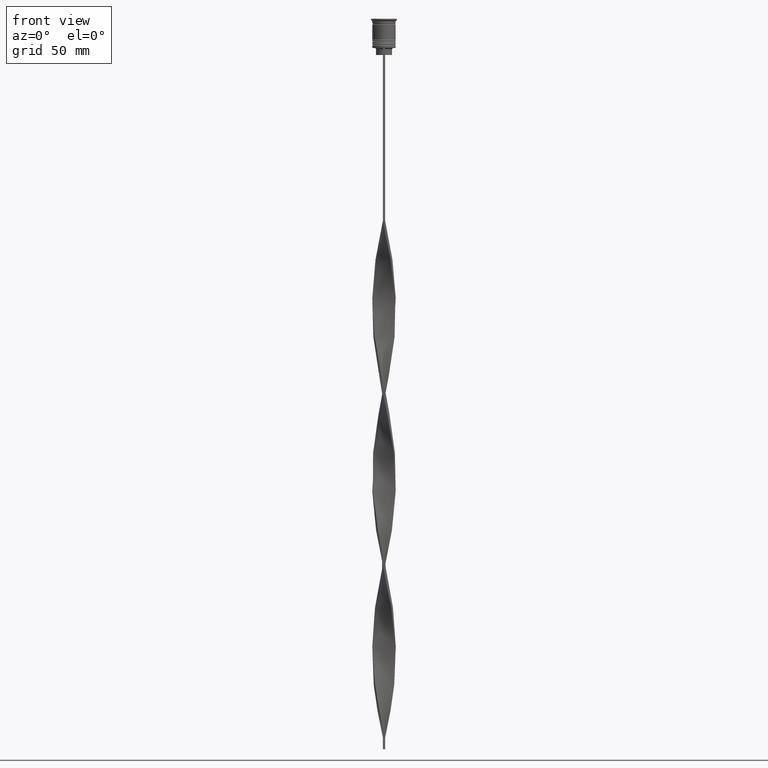
[diagram: clean part render]
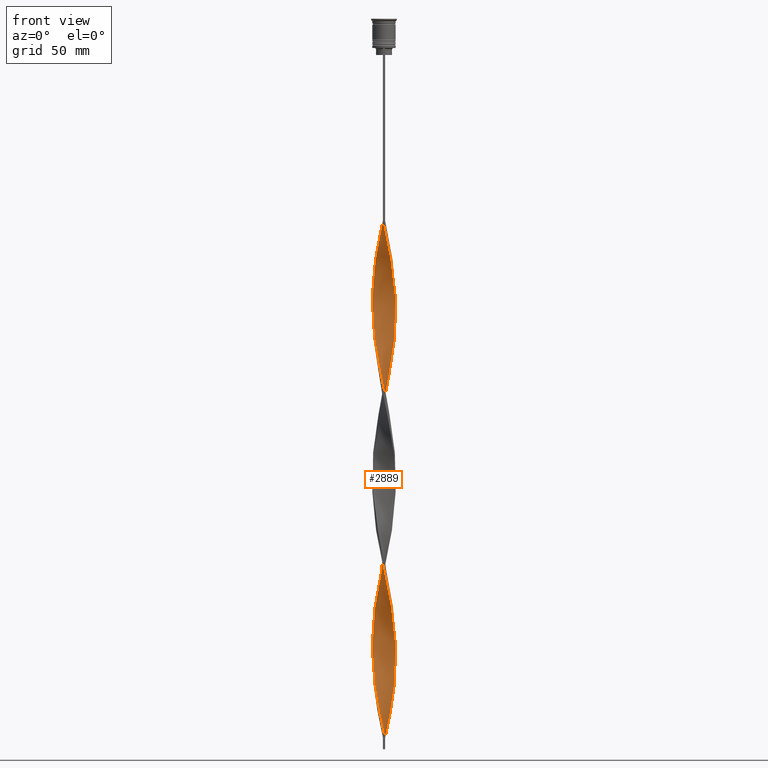
[diagram: same view with one face highlighted and labeled with its STEP entity id]
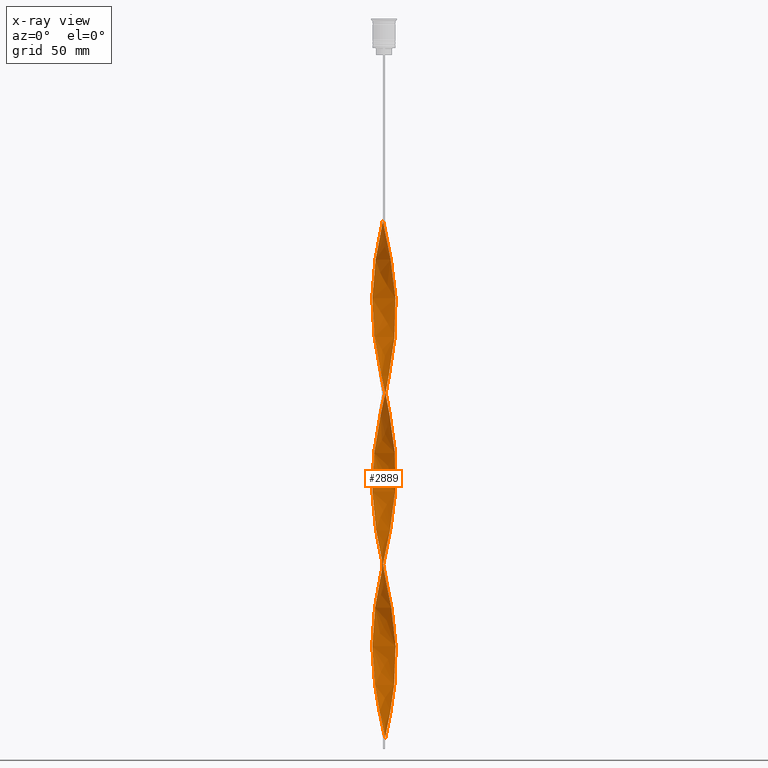
[diagram: x-ray of the same camera — body ghosted, the highlighted face saturated]
A machine part, front view. The second image highlights one B-rep face of the part: STEP entity #2889.
The next image is the same camera in x-ray: the body ghosted, the highlighted face saturated — about 0% of this face is hidden behind the body in this view.
In plain terms, the highlighted face is a freeform B-spline surface patch.
Its self-contained STEP definition (entity closure, byte-faithful):
#15 = CARTESIAN_POINT ( 'NONE',  ( -3.164131141785982759, 3.925766796198028263, -100.0701754385964932 ) ) ;
#20 = CARTESIAN_POINT ( 'NONE',  ( -5.017136063310725369, 0.5017136063310736471, -197.0000000000000000 ) ) ;
#39 = CARTESIAN_POINT ( 'NONE',  ( 4.459306470373856079, 2.316157551480868548, -284.2368421052631220 ) ) ;
#47 = VERTEX_POINT ( 'NONE', #1350 ) ;
#57 = CARTESIAN_POINT ( 'NONE',  ( 2.474816539791243830, 4.393023322829788135, -297.8070175438595584 ) ) ;
#76 = CARTESIAN_POINT ( 'NONE',  ( -3.465633818146536704, 3.638596190637135130, -102.0087719298245474 ) ) ;
#98 = CARTESIAN_POINT ( 'NONE',  ( 2.676493308750141686, -4.252808903326800838, -249.3421052631578902 ) ) ;
#117 = CARTESIAN_POINT ( 'NONE',  ( -3.465633818146536704, 3.638596190637135130, -249.3421052631578902 ) ) ;
#125 = CARTESIAN_POINT ( 'NONE',  ( 5.024212137769516140, 0.08539551914167110847, -195.0614035087719458 ) ) ;
#139 = CARTESIAN_POINT ( 'NONE',  ( -4.017260339178529094, 3.018545902792140634, -253.2192982456140555 ) ) ;
#146 = CARTESIAN_POINT ( 'NONE',  ( -2.324095515968829240, -4.474589461973509152, -146.5964912280701355 ) ) ;
#162 = CARTESIAN_POINT ( 'NONE',  ( -0.3297922997023091662, -5.014103812153980044, -156.2894736842105203 ) ) ;
#172 = CARTESIAN_POINT ( 'NONE',  ( -4.724258586126254045, -1.712127568673661004, -129.1491228070175339 ) ) ;
#184 = CARTESIAN_POINT ( 'NONE',  ( -5.031288212228304246, 0.3309225680477266840, -266.7894736842105203 ) ) ;
#193 = CARTESIAN_POINT ( 'NONE',  ( 4.866129521283641068, 1.320664341398917419, -200.8771929824561369 ) ) ;
#194 = CARTESIAN_POINT ( 'NONE',  ( 3.912358312251428938, -3.153324029743398427, -109.7631578947368354 ) ) ;
#206 = CARTESIAN_POINT ( 'NONE',  ( 4.267384183849968871, -2.685666220508039714, -181.4912280701754241 ) ) ;
#214 = CARTESIAN_POINT ( 'NONE',  ( 2.474816539791241610, -4.393023322829790800, -169.8596491228070136 ) ) ;
#215 = CARTESIAN_POINT ( 'NONE',  ( 4.267384183849967094, 2.685666220508037494, -138.8421052631578902 ) ) ;
#233 = CARTESIAN_POINT ( 'NONE',  ( 2.676493308750141686, -4.252808903326800838, -102.0087719298245474 ) ) ;
#237 = CARTESIAN_POINT ( 'NONE',  ( -3.465633818146536704, 3.638596190637135130, -249.3421052631578902 ) ) ;
#254 = CARTESIAN_POINT ( 'NONE',  ( -1.717995393956227135, -4.740449624971873277, -228.0175438596490949 ) ) ;
#258 = CARTESIAN_POINT ( 'NONE',  ( -1.555904663195419868, -4.796095443128455926, -297.8070175438595584 ) ) ;
#259 = CARTESIAN_POINT ( 'NONE',  ( -2.819473840788614627, -4.159395059513905757, -222.2017543859649038 ) ) ;
#275 = CARTESIAN_POINT ( 'NONE',  ( 1.316153603105031156, 4.849509221873243625, -156.2894736842105203 ) ) ;
#277 = CARTESIAN_POINT ( 'NONE',  ( -4.651228756897745953, 1.946648882453702933, -259.0350877192983035 ) ) ;
#278 = CARTESIAN_POINT ( 'NONE',  ( 2.324095515968828352, -4.474589461973507376, -247.4035087719297792 ) ) ;
#292 = CARTESIAN_POINT ( 'NONE',  ( -2.474816539791244274, -4.393023322829788135, -224.1403508771929580 ) ) ;
#296 = CARTESIAN_POINT ( 'NONE',  ( -3.912358312251430714, -3.153324029743398427, -284.2368421052631220 ) ) ;
#297 = CARTESIAN_POINT ( 'NONE',  ( -5.024212137769514364, 0.08539551914167310687, -198.9385964912280826 ) ) ;
#312 = CARTESIAN_POINT ( 'NONE',  ( -4.459306470373856968, -2.316157551480868104, -210.5701754385964932 ) ) ;
#317 = CARTESIAN_POINT ( 'NONE',  ( -2.676493308750143463, -4.252808903326802614, -291.9912280701753957 ) ) ;
#318 = CARTESIAN_POINT ( 'NONE',  ( -1.555904663195415871, 4.796095443128455038, -169.8596491228070136 ) ) ;
#331 = CARTESIAN_POINT ( 'NONE',  ( 4.969744073267050588, 0.7427273027343300749, -276.4824561403509051 ) ) ;
#336 = CARTESIAN_POINT ( 'NONE',  ( 4.866129521283638404, -1.320664341398920749, -266.7894736842105203 ) ) ;
#346 =( BOUNDED_CURVE ( )  B_SPLINE_CURVE ( 2, ( #2034, #542, #3928, #1726, #1463, #1770, #2342, #3387, #2384, #2738, #3366, #816, #3686, #3302, #1481, #524, #1080, #1142, #4022, #2406, #2674, #457, #172, #2428, #2699, #2055, #2074, #1790, #3322, #480, #3624, #146, #2987, #3054, #1394, #1168, #1105, #3957, #778, #840, #2719, #1446, #3981, #214, #1746, #1416, #3707, #2365, #3999, #3643, #3345, #1809, #860, #2099, #2118, #1123, #125, #3034, #3663, #193, #2651, #2795, #4131, #3783, #3117, #959, #1563, #2445, #4091, #1835, #2776, #1203, #2834, #1227, #3139, #3410, #2466, #2759, #646, #936, #2489, #3764, #2190, #3805, #237, #1526, #2134, #1263, #3469, #277, #586, #917, #1245, #1895, #625, #3450, #1541, #3162, #2174, #2156, #2506, #2217, #296, #1506, #3744, #3726, #317, #1579, #1852, #258, #603, #897, #1869, #2529, #3074 ),
 .UNSPECIFIED., .F., .T. ) 
 B_SPLINE_CURVE_WITH_KNOTS ( ( 3, 2, 2, 2, 2, 2, 2, 2, 2, 2, 2, 2, 2, 2, 2, 2, 2, 2, 2, 2, 2, 2, 2, 2, 2, 2, 2, 2, 2, 2, 2, 2, 2, 2, 2, 2, 2, 2, 2, 2, 2, 2, 2, 2, 2, 2, 2, 2, 2, 2, 2, 2, 2, 2, 2, 2, 2, 3 ),
 ( 0.000000000000000000, 0.01315789473684210453, 0.02631578947368420907, 0.03947368421052631360, 0.05263157894736841813, 0.06578947368421052266, 0.07894736842105262720, 0.09210526315789473173, 0.1052631578947368363, 0.1184210526315789408, 0.1315789473684210453, 0.1447368421052631637, 0.1578947368421052544, 0.1710526315789473728, 0.1842105263157894635, 0.1973684210526315541, 0.2105263157894736725, 0.2236842105263157909, 0.2368421052631578816, 0.2500000000000000000, 0.2631578947368420907, 0.2763157894736842368, 0.2894736842105263275, 0.3026315789473684181, 0.3157894736842105088, 0.3289473684210526550, 0.3421052631578947456, 0.3552631578947368918, 0.3684210526315789269, 0.3815789473684210731, 0.3947368421052631082, 0.4078947368421052544, 0.4210526315789473450, 0.4342105263157895467, 0.4473684210526315819, 0.4605263157894736725, 0.4736842105263157632, 0.4868421052631579093, 0.5000000000000000000, 0.5131578947368421462, 0.5263157894736841813, 0.5394736842105263275, 0.5526315789473684736, 0.5657894736842105088, 0.5789473684210526550, 0.5921052631578946901, 0.6052631578947368363, 0.6184210526315789824, 0.6315789473684210176, 0.6447368421052631637, 0.6578947368421053099, 0.6710526315789473450, 0.6842105263157894912, 0.6973684210526315264, 0.7105263157894737835, 0.7236842105263158187, 0.7368421052631578538, 0.7500000000000000000 ),
 .UNSPECIFIED. ) 
 CURVE ( )  GEOMETRIC_REPRESENTATION_ITEM ( )  RATIONAL_B_SPLINE_CURVE ( ( 1.000000000000000000, 0.9965844930066698470, 1.000000000000000000, 0.9965844930066698470, 1.000000000000000000, 0.9965844930066698470, 1.000000000000000000, 0.9965844930066698470, 1.000000000000000000, 0.9965844930066698470, 1.000000000000000000, 0.9965844930066698470, 1.000000000000000000, 0.9965844930066698470, 1.000000000000000000, 0.9965844930066698470, 1.000000000000000000, 0.9965844930066698470, 1.000000000000000000, 0.9965844930066698470, 1.000000000000000000, 0.9965844930066698470, 1.000000000000000000, 0.9965844930066698470, 1.000000000000000000, 0.9965844930066698470, 1.000000000000000000, 0.9965844930066698470, 1.000000000000000000, 0.9965844930066698470, 1.000000000000000000, 0.9965844930066698470, 1.000000000000000000, 0.9965844930066698470, 1.000000000000000000, 0.9965844930066698470, 1.000000000000000000, 0.9965844930066698470, 1.000000000000000000, 0.9965844930066698470, 1.000000000000000000, 0.9965844930066698470, 1.000000000000000000, 0.9965844930066698470, 1.000000000000000000, 0.9965844930066698470, 1.000000000000000000, 0.9965844930066698470, 1.000000000000000000, 0.9965844930066698470, 1.000000000000000000, 0.9965844930066698470, 1.000000000000000000, 0.9965844930066698470, 1.000000000000000000, 0.9965844930066698470, 1.000000000000000000, 0.9965844930066698470, 1.000000000000000000, 0.9965844930066698470, 1.000000000000000000, 0.9965844930066698470, 1.000000000000000000, 0.9965844930066698470, 1.000000000000000000, 0.9965844930066698470, 1.000000000000000000, 0.9965844930066698470, 1.000000000000000000, 0.9965844930066698470, 1.000000000000000000, 0.9965844930066698470, 1.000000000000000000, 0.9965844930066698470, 1.000000000000000000, 0.9965844930066698470, 1.000000000000000000, 0.9965844930066698470, 1.000000000000000000, 0.9965844930066698470, 1.000000000000000000, 0.9965844930066698470, 1.000000000000000000, 0.9965844930066698470, 1.000000000000000000, 0.9965844930066698470, 1.000000000000000000, 0.9965844930066698470, 1.000000000000000000, 0.9965844930066698470, 1.000000000000000000, 0.9965844930066698470, 1.000000000000000000, 0.9965844930066698470, 1.000000000000000000, 0.9965844930066698470, 1.000000000000000000, 0.9965844930066698470, 1.000000000000000000, 0.9965844930066698470, 1.000000000000000000, 0.9965844930066698470, 1.000000000000000000, 0.9965844930066698470, 1.000000000000000000, 0.9965844930066698470, 1.000000000000000000, 0.9965844930066698470, 1.000000000000000000, 0.9965844930066698470, 1.000000000000000000, 0.9965844930066698470, 1.000000000000000000, 0.9965844930066698470, 1.000000000000000000 ) ) 
 REPRESENTATION_ITEM ( '' )  );
#349 = CARTESIAN_POINT ( 'NONE',  ( 4.724258586126251380, -1.712127568673661226, -264.8508771929824661 ) ) ;
#375 = CARTESIAN_POINT ( 'NONE',  ( 4.267384183849967982, 2.685666220508037494, -286.1754385964911762 ) ) ;
#379 = CARTESIAN_POINT ( 'NONE',  ( 4.017260339178529094, 3.018545902792137969, -288.1140350877192873 ) ) ;
#393 = CARTESIAN_POINT ( 'NONE',  ( -5.017136063310728034, -0.5017136063310723149, -123.3333333333333286 ) ) ;
#395 = CARTESIAN_POINT ( 'NONE',  ( 2.096405966873735149, 4.566736473900831150, -299.7456140350877263 ) ) ;
#409 = CARTESIAN_POINT ( 'NONE',  ( 4.779714345601772330, 1.550590459937317256, -280.3596491228070136 ) ) ;
#413 = CARTESIAN_POINT ( 'NONE',  ( 4.459306470373856079, 2.316157551480868548, -284.2368421052631220 ) ) ;
#431 = CARTESIAN_POINT ( 'NONE',  ( -4.941632792297183663, -0.9111889738649963100, -272.6052631578947398 ) ) ;
#449 = CARTESIAN_POINT ( 'NONE',  ( 3.912358312251431602, 3.153324029743397539, -210.5701754385964932 ) ) ;
#452 = CARTESIAN_POINT ( 'NONE',  ( 2.324095515968828796, -4.474589461973508264, -100.0701754385964932 ) ) ;
#453 = ORIENTED_EDGE ( 'NONE', *, *, #2665, .T. ) ;
#457 = CARTESIAN_POINT ( 'NONE',  ( -4.866129521283641068, -1.320664341398920527, -127.2105263157894370 ) ) ;
#459 = CARTESIAN_POINT ( 'NONE',  ( 5.031288212228303358, 0.3309225680477255738, -127.2105263157894370 ) ) ;
#472 = CARTESIAN_POINT ( 'NONE',  ( -0.9143118122538339554, 4.958568818774617526, -235.7719298245614254 ) ) ;
#476 = CARTESIAN_POINT ( 'NONE',  ( 1.555904663195416537, -4.796095443128455926, -96.19298245614034215 ) ) ;
#480 = CARTESIAN_POINT ( 'NONE',  ( -3.028891101531455909, -4.031028344680096076, -142.7192982456140271 ) ) ;
#496 = CARTESIAN_POINT ( 'NONE',  ( 1.555904663195420978, 4.796095443128456814, -224.1403508771929580 ) ) ;
#516 = CARTESIAN_POINT ( 'NONE',  ( -0.08568818774616367151, 5.041431181225384250, -231.8947368421052886 ) ) ;
#521 = CARTESIAN_POINT ( 'NONE',  ( 0.7452727871507823787, -4.986776443082572285, -92.31578947368419108 ) ) ;
#524 = CARTESIAN_POINT ( 'NONE',  ( -4.908199934305800483, 1.154532037420935797, -115.5789473684210265 ) ) ;
#525 = CARTESIAN_POINT ( 'NONE',  ( 3.339978767552786554, -3.754269813465270555, -105.8859649122806985 ) ) ;
#536 = CARTESIAN_POINT ( 'NONE',  ( 0.5000000000000002220, 1.666666666666666075, -307.5000000000000000 ) ) ;
#537 = ORIENTED_EDGE ( 'NONE', *, *, #1597, .F. ) ;
#538 = CARTESIAN_POINT ( 'NONE',  ( 1.940000089582122778, -4.635342452550982095, -98.13157894736841058 ) ) ;
#542 = CARTESIAN_POINT ( 'NONE',  ( -0.9143118122538339554, 4.958568818774617526, -88.43859649122805422 ) ) ;
#561 = CARTESIAN_POINT ( 'NONE',  ( 5.024212137769514364, -0.08539551914167359259, -125.2719298245613970 ) ) ;
#568 = CARTESIAN_POINT ( 'NONE',  ( -4.378018920948800741, 2.466363786592377760, -187.3070175438596436 ) ) ;
#579 = CARTESIAN_POINT ( 'NONE',  ( 0.4999999999999993339, -5.000000000000000888, -307.5000000000000000 ) ) ;
#583 = CARTESIAN_POINT ( 'NONE',  ( -4.582387650968865245, 2.103590795948401482, -189.2456140350877263 ) ) ;
#586 = CARTESIAN_POINT ( 'NONE',  ( -4.779714345601773218, 1.550590459937319476, -260.9736842105263577 ) ) ;
#587 = CARTESIAN_POINT ( 'NONE',  ( -3.339978767552784777, 3.754269813465272332, -179.5526315789473415 ) ) ;
#600 = CARTESIAN_POINT ( 'NONE',  ( -1.150588725173099514, 4.891435943105514106, -167.9210526315789309 ) ) ;
#603 = CARTESIAN_POINT ( 'NONE',  ( -1.150588725173101068, -4.891435943105515882, -299.7456140350877263 ) ) ;
#604 = CARTESIAN_POINT ( 'NONE',  ( -2.676493308750141686, 4.252808903326801726, -175.6754385964912046 ) ) ;
#616 = CARTESIAN_POINT ( 'NONE',  ( -4.173650190928740678, -2.829136777236350486, -282.2982456140351246 ) ) ;
#621 = CARTESIAN_POINT ( 'NONE',  ( 4.969744073267050588, 0.7427273027343300749, -129.1491228070175339 ) ) ;
#625 = CARTESIAN_POINT ( 'NONE',  ( -5.024212137769516140, -0.08539551914167284319, -268.7280701754385746 ) ) ;
#626 = CARTESIAN_POINT ( 'NONE',  ( 4.173650190928738901, -2.829136777236350042, -259.0350877192983035 ) ) ;
#643 = CARTESIAN_POINT ( 'NONE',  ( 0.7452727871507823787, -4.986776443082572285, -239.6491228070175055 ) ) ;
#646 = CARTESIAN_POINT ( 'NONE',  ( -1.316153603105030712, 4.849509221873245401, -237.7105263157894797 ) ) ;
#647 = CARTESIAN_POINT ( 'NONE',  ( -5.031288212228303358, -0.3309225680477228537, -200.8771929824561369 ) ) ;
#661 = ORIENTED_EDGE ( 'NONE', *, *, #2587, .F. ) ;
#662 = CARTESIAN_POINT ( 'NONE',  ( 4.866129521283638404, -1.320664341398920749, -266.7894736842105203 ) ) ;
#679 = CARTESIAN_POINT ( 'NONE',  ( 3.465633818146536260, 3.638596190637132466, -291.9912280701753957 ) ) ;
#705 = CARTESIAN_POINT ( 'NONE',  ( -4.017260339178529094, 3.018545902792140634, -105.8859649122806985 ) ) ;
#725 = CARTESIAN_POINT ( 'NONE',  ( 2.096405966873735149, 4.566736473900831150, -299.7456140350877263 ) ) ;
#746 = CARTESIAN_POINT ( 'NONE',  ( -1.940000089582124554, -4.635342452550982983, -148.5350877192982466 ) ) ;
#770 = CARTESIAN_POINT ( 'NONE',  ( 4.173650190928741566, 2.829136777236347822, -208.6315789473684106 ) ) ;
#778 = CARTESIAN_POINT ( 'NONE',  ( 0.4999999999999993339, -5.000000000000000888, -160.1666666666666856 ) ) ;
#790 = CARTESIAN_POINT ( 'NONE',  ( 0.7452727871507832669, 4.986776443082574062, -228.0175438596490949 ) ) ;
#798 = CARTESIAN_POINT ( 'NONE',  ( 0.7452727871507823787, -4.986776443082572285, -92.31578947368420529 ) ) ;
#810 = CARTESIAN_POINT ( 'NONE',  ( -4.267384183849969759, 2.685666220508038382, -255.1578947368421666 ) ) ;
#816 = CARTESIAN_POINT ( 'NONE',  ( -4.267384183849968871, 2.685666220508038382, -107.8245614035087527 ) ) ;
#818 = EDGE_LOOP ( 'NONE', ( #453, #3976, #537, #661 ) ) ;
#830 = CARTESIAN_POINT ( 'NONE',  ( 4.651228756897745065, -1.946648882453705598, -185.3684210526315894 ) ) ;
#840 = CARTESIAN_POINT ( 'NONE',  ( 0.9143118122538322901, -4.958568818774617526, -162.1052631578947398 ) ) ;
#841 = CARTESIAN_POINT ( 'NONE',  ( 5.024212137769514364, -0.08539551914167359259, -125.2719298245613970 ) ) ;
#851 = CARTESIAN_POINT ( 'NONE',  ( 3.465633818146536704, -3.638596190637135130, -175.6754385964912046 ) ) ;
#860 = CARTESIAN_POINT ( 'NONE',  ( 4.779714345601772330, -1.550590459937321031, -187.3070175438596436 ) ) ;
#861 = CARTESIAN_POINT ( 'NONE',  ( 3.767136494507087541, 3.351425585076240221, -142.7192982456140271 ) ) ;
#874 = CARTESIAN_POINT ( 'NONE',  ( -4.866129521283638404, 1.320664341398923192, -193.1228070175438063 ) ) ;
#878 = CARTESIAN_POINT ( 'NONE',  ( -3.767136494507089761, -3.351425585076238001, -216.3859649122807127 ) ) ;
#893 = CARTESIAN_POINT ( 'NONE',  ( -3.339978767552784777, 3.754269813465272332, -179.5526315789473415 ) ) ;
#897 = CARTESIAN_POINT ( 'NONE',  ( -0.7452727871507847102, -4.986776443082574062, -301.6842105263157805 ) ) ;
#899 = CARTESIAN_POINT ( 'NONE',  ( -4.582387650968865245, 2.103590795948401482, -189.2456140350877263 ) ) ;
#914 = CARTESIAN_POINT ( 'NONE',  ( -0.9143118122538360648, -4.958568818774616638, -231.8947368421052886 ) ) ;
#917 = CARTESIAN_POINT ( 'NONE',  ( -4.908199934305800483, 1.154532037420935797, -262.9122807017543551 ) ) ;
#918 = CARTESIAN_POINT ( 'NONE',  ( -2.096405966873735593, -4.566736473900831150, -226.0789473684210407 ) ) ;
#932 = CARTESIAN_POINT ( 'NONE',  ( -4.779714345601771441, -1.550590459937318588, -206.6929824561403564 ) ) ;
#936 = CARTESIAN_POINT ( 'NONE',  ( -1.717995393956227135, 4.740449624971874165, -239.6491228070175339 ) ) ;
#937 = CARTESIAN_POINT ( 'NONE',  ( 3.651066433574118975, -3.477511282250445923, -255.1578947368421382 ) ) ;
#952 = CARTESIAN_POINT ( 'NONE',  ( 0.4999999999999993339, -5.000000000000000888, -307.5000000000000000 ) ) ;
#954 = CARTESIAN_POINT ( 'NONE',  ( -2.096405966873735593, -4.566736473900831150, -226.0789473684210407 ) ) ;
#959 = CARTESIAN_POINT ( 'NONE',  ( 3.651066433574120751, 3.477511282250446367, -212.5087719298246043 ) ) ;
#960 = CARTESIAN_POINT ( 'NONE',  ( 4.724258586126251380, -1.712127568673661226, -264.8508771929824661 ) ) ;
#976 = CARTESIAN_POINT ( 'NONE',  ( 3.651066433574118975, -3.477511282250445923, -255.1578947368421666 ) ) ;
#991 = CARTESIAN_POINT ( 'NONE',  ( 4.017260339178529094, 3.018545902792137969, -288.1140350877192873 ) ) ;
#995 = CARTESIAN_POINT ( 'NONE',  ( 4.908199934305798706, 1.154532037420934687, -278.4210526315789593 ) ) ;
#1010 = CARTESIAN_POINT ( 'NONE',  ( -2.096405966873734705, 4.566736473900832927, -94.25438596491227372 ) ) ;
#1034 = CARTESIAN_POINT ( 'NONE',  ( 4.173650190928738901, -2.829136777236350042, -259.0350877192983035 ) ) ;
#1037 = CARTESIAN_POINT ( 'NONE',  ( 4.267384183849967094, 2.685666220508037494, -286.1754385964911762 ) ) ;
#1050 = EDGE_CURVE ( 'NONE', #47, #1926, #346, .T. ) ;
#1055 = CARTESIAN_POINT ( 'NONE',  ( -2.819473840788612851, 4.159395059513909310, -98.13157894736841058 ) ) ;
#1071 = CARTESIAN_POINT ( 'NONE',  ( 4.969744073267052364, -0.7427273027343305190, -191.1842105263157805 ) ) ;
#1074 = CARTESIAN_POINT ( 'NONE',  ( 4.941632792297182775, -0.9111889738649967541, -121.3947368421052460 ) ) ;
#1080 = CARTESIAN_POINT ( 'NONE',  ( -4.969744073267053253, 0.7427273027343311851, -117.5175438596491233 ) ) ;
#1095 = CARTESIAN_POINT ( 'NONE',  ( 3.339978767552791439, 3.754269813465269223, -214.4473684210526301 ) ) ;
#1105 = CARTESIAN_POINT ( 'NONE',  ( -0.3297922997023091662, -5.014103812153980044, -156.2894736842105203 ) ) ;
#1106 = CARTESIAN_POINT ( 'NONE',  ( 3.651066433574118975, -3.477511282250445923, -107.8245614035087527 ) ) ;
#1116 = CARTESIAN_POINT ( 'NONE',  ( 5.017136063310728034, 0.5017136063310717597, -197.0000000000000000 ) ) ;
#1122 = CARTESIAN_POINT ( 'NONE',  ( 0.5000000000000006661, 4.999999999999999112, -307.5000000000000000 ) ) ;
#1123 = CARTESIAN_POINT ( 'NONE',  ( 5.031288212228304246, -0.3309225680477295151, -193.1228070175438347 ) ) ;
#1135 = CARTESIAN_POINT ( 'NONE',  ( 3.767136494507088873, -3.351425585076243330, -177.6140350877192873 ) ) ;
#1142 = CARTESIAN_POINT ( 'NONE',  ( -5.031288212228304246, 0.3309225680477266840, -119.4561403508771917 ) ) ;
#1143 = CARTESIAN_POINT ( 'NONE',  ( 4.866129521283638404, -1.320664341398920749, -119.4561403508771917 ) ) ;
#1157 = CARTESIAN_POINT ( 'NONE',  ( -1.555904663195420090, -4.796095443128456814, -150.4736842105263008 ) ) ;
#1163 = CARTESIAN_POINT ( 'NONE',  ( 1.150588725173099736, -4.891435943105514106, -94.25438596491227372 ) ) ;
#1168 = CARTESIAN_POINT ( 'NONE',  ( -0.7452727871507847102, -4.986776443082574062, -154.3508771929824661 ) ) ;
#1169 = CARTESIAN_POINT ( 'NONE',  ( 4.969744073267050588, 0.7427273027343300749, -129.1491228070175339 ) ) ;
#1180 = CARTESIAN_POINT ( 'NONE',  ( -4.724258586126254045, -1.712127568673661004, -276.4824561403509051 ) ) ;
#1185 = CARTESIAN_POINT ( 'NONE',  ( 4.908199934305798706, 1.154532037420934687, -131.0877192982456449 ) ) ;
#1188 = CARTESIAN_POINT ( 'NONE',  ( 3.028891101531455021, -4.031028344680095188, -103.9473684210526159 ) ) ;
#1201 = CARTESIAN_POINT ( 'NONE',  ( -1.555904663195415649, 4.796095443128455926, -169.8596491228070136 ) ) ;
#1203 = CARTESIAN_POINT ( 'NONE',  ( 1.555904663195420756, 4.796095443128455926, -224.1403508771929864 ) ) ;
#1204 = CARTESIAN_POINT ( 'NONE',  ( 0.5000000000000006661, 4.999999999999999112, -160.1666666666666856 ) ) ;
#1215 = CARTESIAN_POINT ( 'NONE',  ( -1.555904663195420090, -4.796095443128456814, -297.8070175438595584 ) ) ;
#1222 = CARTESIAN_POINT ( 'NONE',  ( -3.912358312251428938, 3.153324029743398427, -183.4298245614035068 ) ) ;
#1227 = CARTESIAN_POINT ( 'NONE',  ( 0.7452727871507831559, 4.986776443082574062, -228.0175438596490949 ) ) ;
#1229 = CARTESIAN_POINT ( 'NONE',  ( 0.7452727871507823787, -4.986776443082572285, -239.6491228070175339 ) ) ;
#1239 = CARTESIAN_POINT ( 'NONE',  ( -4.866129521283641068, -1.320664341398920527, -274.5438596491227941 ) ) ;
#1242 = CARTESIAN_POINT ( 'NONE',  ( -4.941632792297182775, 0.9111889738649984194, -195.0614035087719458 ) ) ;
#1245 = CARTESIAN_POINT ( 'NONE',  ( -4.969744073267053253, 0.7427273027343311851, -264.8508771929824661 ) ) ;
#1246 = CARTESIAN_POINT ( 'NONE',  ( -0.5000000000000000000, -4.999999999999999112, -233.8333333333333428 ) ) ;
#1254 = CARTESIAN_POINT ( 'NONE',  ( -3.651066433574120751, -3.477511282250446811, -286.1754385964911762 ) ) ;
#1259 = CARTESIAN_POINT ( 'NONE',  ( 4.651228756897745065, 1.946648882453701823, -134.9649122807017534 ) ) ;
#1263 = CARTESIAN_POINT ( 'NONE',  ( -4.267384183849968871, 2.685666220508038382, -255.1578947368421382 ) ) ;
#1264 = CARTESIAN_POINT ( 'NONE',  ( -0.08568818774616615563, -5.041431181225382474, -235.7719298245613970 ) ) ;
#1280 = CARTESIAN_POINT ( 'NONE',  ( -5.024212137769516140, -0.08539551914167284319, -121.3947368421052460 ) ) ;
#1285 = CARTESIAN_POINT ( 'NONE',  ( -4.173650190928737125, 2.829136777236352263, -185.3684210526315610 ) ) ;
#1303 = CARTESIAN_POINT ( 'NONE',  ( 5.031288212228303358, 0.3309225680477256293, -274.5438596491227941 ) ) ;
#1306 = LINE ( 'NONE', #3828, #1756 ) ;
#1322 = CARTESIAN_POINT ( 'NONE',  ( -1.717995393956227135, 4.740449624971875053, -92.31578947368419108 ) ) ;
#1325 =( BOUNDED_SURFACE ( )  B_SPLINE_SURFACE ( 1, 2, ( 
 ( #2096, #1410, #3682, #521, #1163, #476, #538, #452, #233, #2030, #2670, #1786, #3703, #1742, #1804, #2114, #3382, #2647, #1074, #3010, #561, #2831, #621, #1185, #2503, #1259, #3780, #4062, #2129, #3404, #2187, #4082, #4106, #1524, #1831, #4125, #275, #3724, #2461, #1501, #2773, #1576, #600, #1201, #1540, #2153, #3738, #1850, #893, #2791, #1222, #1890, #3427, #583, #2522, #874, #1242, #3113, #1865, #1912, #3800, #3464, #932, #3094, #312, #3134, #2483, #2171, #3157, #1558, #3761, #292, #954, #254, #2812, #914, #3445, #2213, #3490, #643, #3178, #2757, #2443, #4043, #98, #2603, #2873, #976, #2232, #1034, #2895, #2914, #349, #662, #1671, #3217, #2546, #1303, #331, #1615, #409, #3550, #39, #375, #991, #2564, #679, #3841, #1635, #57, #725, #2248, #3524, #2936, #3826 ),
 ( #1592, #1947, #3858, #1322, #1010, #2579, #1055, #15, #76, #2270, #705, #1368, #2292, #3573, #1970, #2003, #3237, #3905, #1280, #393, #2626, #1653, #3508, #1929, #1342, #2849, #1988, #3196, #3887, #3258, #2307, #3590, #746, #1157, #1763, #2645, #162, #2027, #2979, #1407, #3046, #1437, #3336, #3612, #2666, #2959, #851, #1135, #2691, #206, #3946, #830, #2048, #3295, #1071, #3972, #4014, #1116, #2421, #2376, #3992, #3921, #2091, #770, #449, #3315, #1095, #2396, #2356, #3635, #3699, #496, #1696, #790, #2329, #516, #3358, #472, #1718, #3004, #1739, #3657, #3676, #3275, #117, #1782, #139, #810, #1474, #2066, #3028, #1385, #2730, #184, #1456, #2711, #431, #1239, #1180, #2147, #2786, #616, #4076, #1254, #2126, #2110, #2455, #1536, #3423, #1215, #3109, #2828, #1799, #1861, #579 ) ),
 .UNSPECIFIED., .F., .F., .F. ) 
 B_SPLINE_SURFACE_WITH_KNOTS ( ( 2, 2 ),
 ( 3, 2, 2, 2, 2, 2, 2, 2, 2, 2, 2, 2, 2, 2, 2, 2, 2, 2, 2, 2, 2, 2, 2, 2, 2, 2, 2, 2, 2, 2, 2, 2, 2, 2, 2, 2, 2, 2, 2, 2, 2, 2, 2, 2, 2, 2, 2, 2, 2, 2, 2, 2, 2, 2, 2, 2, 2, 3 ),
 ( 0.000000000000000000, 1.000000000000000000 ),
 ( 0.000000000000000000, 0.01315789473684210453, 0.02631578947368420907, 0.03947368421052631360, 0.05263157894736841813, 0.06578947368421052266, 0.07894736842105262720, 0.09210526315789473173, 0.1052631578947368363, 0.1184210526315789408, 0.1315789473684210453, 0.1447368421052631637, 0.1578947368421052544, 0.1710526315789473728, 0.1842105263157894635, 0.1973684210526315819, 0.2105263157894736725, 0.2236842105263157909, 0.2368421052631578816, 0.2500000000000000000, 0.2631578947368420907, 0.2763157894736842368, 0.2894736842105263275, 0.3026315789473684181, 0.3157894736842105088, 0.3289473684210526550, 0.3421052631578947456, 0.3552631578947368363, 0.3684210526315789269, 0.3815789473684210731, 0.3947368421052631637, 0.4078947368421052544, 0.4210526315789473450, 0.4342105263157894912, 0.4473684210526315819, 0.4605263157894736725, 0.4736842105263157632, 0.4868421052631579093, 0.5000000000000000000, 0.5131578947368421462, 0.5263157894736841813, 0.5394736842105263275, 0.5526315789473684736, 0.5657894736842105088, 0.5789473684210526550, 0.5921052631578946901, 0.6052631578947368363, 0.6184210526315789824, 0.6315789473684210176, 0.6447368421052631637, 0.6578947368421053099, 0.6710526315789473450, 0.6842105263157894912, 0.6973684210526315264, 0.7105263157894736725, 0.7236842105263158187, 0.7368421052631578538, 0.7500000000000000000 ),
 .UNSPECIFIED. ) 
 GEOMETRIC_REPRESENTATION_ITEM ( )  RATIONAL_B_SPLINE_SURFACE ( (
 ( 1.000000000000000000, 0.9965844930066698470, 1.000000000000000000, 0.9965844930066698470, 1.000000000000000000, 0.9965844930066698470, 1.000000000000000000, 0.9965844930066698470, 1.000000000000000000, 0.9965844930066698470, 1.000000000000000000, 0.9965844930066698470, 1.000000000000000000, 0.9965844930066698470, 1.000000000000000000, 0.9965844930066698470, 1.000000000000000000, 0.9965844930066698470, 1.000000000000000000, 0.9965844930066698470, 1.000000000000000000, 0.9965844930066698470, 1.000000000000000000, 0.9965844930066698470, 1.000000000000000000, 0.9965844930066698470, 1.000000000000000000, 0.9965844930066698470, 1.000000000000000000, 0.9965844930066698470, 1.000000000000000000, 0.9965844930066698470, 1.000000000000000000, 0.9965844930066698470, 1.000000000000000000, 0.9965844930066698470, 1.000000000000000000, 0.9965844930066698470, 1.000000000000000000, 0.9965844930066698470, 1.000000000000000000, 0.9965844930066698470, 1.000000000000000000, 0.9965844930066698470, 1.000000000000000000, 0.9965844930066698470, 1.000000000000000000, 0.9965844930066698470, 1.000000000000000000, 0.9965844930066698470, 1.000000000000000000, 0.9965844930066698470, 1.000000000000000000, 0.9965844930066698470, 1.000000000000000000, 0.9965844930066698470, 1.000000000000000000, 0.9965844930066698470, 1.000000000000000000, 0.9965844930066698470, 1.000000000000000000, 0.9965844930066698470, 1.000000000000000000, 0.9965844930066698470, 1.000000000000000000, 0.9965844930066698470, 1.000000000000000000, 0.9965844930066698470, 1.000000000000000000, 0.9965844930066698470, 1.000000000000000000, 0.9965844930066698470, 1.000000000000000000, 0.9965844930066698470, 1.000000000000000000, 0.9965844930066698470, 1.000000000000000000, 0.9965844930066698470, 1.000000000000000000, 0.9965844930066698470, 1.000000000000000000, 0.9965844930066698470, 1.000000000000000000, 0.9965844930066698470, 1.000000000000000000, 0.9965844930066698470, 1.000000000000000000, 0.9965844930066698470, 1.000000000000000000, 0.9965844930066698470, 1.000000000000000000, 0.9965844930066698470, 1.000000000000000000, 0.9965844930066698470, 1.000000000000000000, 0.9965844930066698470, 1.000000000000000000, 0.9965844930066698470, 1.000000000000000000, 0.9965844930066698470, 1.000000000000000000, 0.9965844930066698470, 1.000000000000000000, 0.9965844930066698470, 1.000000000000000000, 0.9965844930066698470, 1.000000000000000000, 0.9965844930066698470, 1.000000000000000000, 0.9965844930066698470, 1.000000000000000000, 0.9965844930066698470, 1.000000000000000000, 0.9965844930066698470, 1.000000000000000000),
 ( 1.000000000000000000, 0.9965844930066698470, 1.000000000000000000, 0.9965844930066698470, 1.000000000000000000, 0.9965844930066698470, 1.000000000000000000, 0.9965844930066698470, 1.000000000000000000, 0.9965844930066698470, 1.000000000000000000, 0.9965844930066698470, 1.000000000000000000, 0.9965844930066698470, 1.000000000000000000, 0.9965844930066698470, 1.000000000000000000, 0.9965844930066698470, 1.000000000000000000, 0.9965844930066698470, 1.000000000000000000, 0.9965844930066698470, 1.000000000000000000, 0.9965844930066698470, 1.000000000000000000, 0.9965844930066698470, 1.000000000000000000, 0.9965844930066698470, 1.000000000000000000, 0.9965844930066698470, 1.000000000000000000, 0.9965844930066698470, 1.000000000000000000, 0.9965844930066698470, 1.000000000000000000, 0.9965844930066698470, 1.000000000000000000, 0.9965844930066698470, 1.000000000000000000, 0.9965844930066698470, 1.000000000000000000, 0.9965844930066698470, 1.000000000000000000, 0.9965844930066698470, 1.000000000000000000, 0.9965844930066698470, 1.000000000000000000, 0.9965844930066698470, 1.000000000000000000, 0.9965844930066698470, 1.000000000000000000, 0.9965844930066698470, 1.000000000000000000, 0.9965844930066698470, 1.000000000000000000, 0.9965844930066698470, 1.000000000000000000, 0.9965844930066698470, 1.000000000000000000, 0.9965844930066698470, 1.000000000000000000, 0.9965844930066698470, 1.000000000000000000, 0.9965844930066698470, 1.000000000000000000, 0.9965844930066698470, 1.000000000000000000, 0.9965844930066698470, 1.000000000000000000, 0.9965844930066698470, 1.000000000000000000, 0.9965844930066698470, 1.000000000000000000, 0.9965844930066698470, 1.000000000000000000, 0.9965844930066698470, 1.000000000000000000, 0.9965844930066698470, 1.000000000000000000, 0.9965844930066698470, 1.000000000000000000, 0.9965844930066698470, 1.000000000000000000, 0.9965844930066698470, 1.000000000000000000, 0.9965844930066698470, 1.000000000000000000, 0.9965844930066698470, 1.000000000000000000, 0.9965844930066698470, 1.000000000000000000, 0.9965844930066698470, 1.000000000000000000, 0.9965844930066698470, 1.000000000000000000, 0.9965844930066698470, 1.000000000000000000, 0.9965844930066698470, 1.000000000000000000, 0.9965844930066698470, 1.000000000000000000, 0.9965844930066698470, 1.000000000000000000, 0.9965844930066698470, 1.000000000000000000, 0.9965844930066698470, 1.000000000000000000, 0.9965844930066698470, 1.000000000000000000, 0.9965844930066698470, 1.000000000000000000, 0.9965844930066698470, 1.000000000000000000, 0.9965844930066698470, 1.000000000000000000) ) ) 
 REPRESENTATION_ITEM ( '' )  SURFACE ( )  );
#1342 = CARTESIAN_POINT ( 'NONE',  ( -4.378018920948803405, -2.466363786592375540, -133.0263157894736992 ) ) ;
#1350 = CARTESIAN_POINT ( 'NONE',  ( -0.5000000000000000000, 5.000000000000000888, -86.50000000000000000 ) ) ;
#1368 = CARTESIAN_POINT ( 'NONE',  ( -4.267384183849969759, 2.685666220508038382, -107.8245614035087385 ) ) ;
#1385 = CARTESIAN_POINT ( 'NONE',  ( -4.908199934305800483, 1.154532037420935797, -262.9122807017543551 ) ) ;
#1394 = CARTESIAN_POINT ( 'NONE',  ( -1.150588725173101068, -4.891435943105515882, -152.4122807017543835 ) ) ;
#1407 = CARTESIAN_POINT ( 'NONE',  ( 0.9143118122538321790, -4.958568818774617526, -162.1052631578947683 ) ) ;
#1410 = CARTESIAN_POINT ( 'NONE',  ( -0.08568818774616615563, -5.041431181225382474, -88.43859649122805422 ) ) ;
#1416 = CARTESIAN_POINT ( 'NONE',  ( 3.164131141785981871, -3.925766796198029152, -173.7368421052631220 ) ) ;
#1417 = CARTESIAN_POINT ( 'NONE',  ( 1.940000089582122778, -4.635342452550982095, -98.13157894736841058 ) ) ;
#1437 = CARTESIAN_POINT ( 'NONE',  ( 1.717995393956226025, -4.740449624971875942, -165.9824561403508199 ) ) ;
#1446 = CARTESIAN_POINT ( 'NONE',  ( 1.717995393956226025, -4.740449624971875053, -165.9824561403508199 ) ) ;
#1447 = CARTESIAN_POINT ( 'NONE',  ( -0.5000000000000000000, -4.999999999999999112, -86.50000000000000000 ) ) ;
#1456 = CARTESIAN_POINT ( 'NONE',  ( -5.024212137769516140, -0.08539551914167284319, -268.7280701754385746 ) ) ;
#1463 = CARTESIAN_POINT ( 'NONE',  ( -2.096405966873734705, 4.566736473900832927, -94.25438596491227372 ) ) ;
#1474 = CARTESIAN_POINT ( 'NONE',  ( -4.459306470373856968, 2.316157551480870769, -257.0964912280701924 ) ) ;
#1481 = CARTESIAN_POINT ( 'NONE',  ( -4.779714345601773218, 1.550590459937319476, -113.6403508771929864 ) ) ;
#1501 = CARTESIAN_POINT ( 'NONE',  ( 0.08568818774616784872, 5.041431181225382474, -162.1052631578947683 ) ) ;
#1506 = CARTESIAN_POINT ( 'NONE',  ( -3.651066433574120751, -3.477511282250446811, -286.1754385964911762 ) ) ;
#1507 = CARTESIAN_POINT ( 'NONE',  ( 2.819473840788612851, 4.159395059513907533, -148.5350877192982466 ) ) ;
#1524 = CARTESIAN_POINT ( 'NONE',  ( 2.474816539791243830, 4.393023322829788135, -150.4736842105263008 ) ) ;
#1526 = CARTESIAN_POINT ( 'NONE',  ( -3.767136494507089317, 3.351425585076241553, -251.2807017543860013 ) ) ;
#1527 = CARTESIAN_POINT ( 'NONE',  ( 1.316153603105031156, 4.849509221873243625, -156.2894736842105203 ) ) ;
#1536 = CARTESIAN_POINT ( 'NONE',  ( -2.324095515968829684, -4.474589461973509152, -293.9298245614035068 ) ) ;
#1540 = CARTESIAN_POINT ( 'NONE',  ( -1.940000089582122333, 4.635342452550982095, -171.7982456140350962 ) ) ;
#1541 = CARTESIAN_POINT ( 'NONE',  ( -4.941632792297183663, -0.9111889738649963100, -272.6052631578947398 ) ) ;
#1542 = CARTESIAN_POINT ( 'NONE',  ( -0.9143118122538361758, -4.958568818774615750, -231.8947368421052602 ) ) ;
#1558 = CARTESIAN_POINT ( 'NONE',  ( -3.164131141785982315, -3.925766796198026487, -220.2631578947368212 ) ) ;
#1563 = CARTESIAN_POINT ( 'NONE',  ( 3.339978767552791439, 3.754269813465269223, -214.4473684210526301 ) ) ;
#1565 = CARTESIAN_POINT ( 'NONE',  ( -4.651228756897745065, -1.946648882453699159, -208.6315789473684106 ) ) ;
#1574 = CARTESIAN_POINT ( 'NONE',  ( 0.4999999999999993339, -5.000000000000000888, -307.5000000000000000 ) ) ;
#1576 = CARTESIAN_POINT ( 'NONE',  ( -0.7452727871507810464, 4.986776443082573174, -165.9824561403508199 ) ) ;
#1579 = CARTESIAN_POINT ( 'NONE',  ( -2.324095515968829240, -4.474589461973509152, -293.9298245614035068 ) ) ;
#1580 = CARTESIAN_POINT ( 'NONE',  ( 1.717995393956228911, 4.740449624971872389, -154.3508771929824661 ) ) ;
#1592 = CARTESIAN_POINT ( 'NONE',  ( -0.5000000000000000000, 5.000000000000000888, -86.50000000000000000 ) ) ;
#1596 = CARTESIAN_POINT ( 'NONE',  ( 2.474816539791243830, 4.393023322829788135, -150.4736842105263008 ) ) ;
#1597 = EDGE_CURVE ( 'NONE', #3985, #1926, #2583, .T. ) ;
#1615 = CARTESIAN_POINT ( 'NONE',  ( 4.908199934305798706, 1.154532037420934687, -278.4210526315789593 ) ) ;
#1635 = CARTESIAN_POINT ( 'NONE',  ( 2.819473840788612851, 4.159395059513907533, -295.8684210526315610 ) ) ;
#1653 = CARTESIAN_POINT ( 'NONE',  ( -4.866129521283641068, -1.320664341398920527, -127.2105263157894370 ) ) ;
#1657 = CARTESIAN_POINT ( 'NONE',  ( 1.316153603105031156, 4.849509221873243625, -303.6228070175438347 ) ) ;
#1671 = CARTESIAN_POINT ( 'NONE',  ( 4.941632792297182775, -0.9111889738649967541, -268.7280701754385746 ) ) ;
#1696 = CARTESIAN_POINT ( 'NONE',  ( 1.150588725173101512, 4.891435943105515882, -226.0789473684210407 ) ) ;
#1718 = CARTESIAN_POINT ( 'NONE',  ( -1.316153603105030712, 4.849509221873245401, -237.7105263157894797 ) ) ;
#1726 = CARTESIAN_POINT ( 'NONE',  ( -1.717995393956227135, 4.740449624971874165, -92.31578947368420529 ) ) ;
#1739 = CARTESIAN_POINT ( 'NONE',  ( -2.096405966873734705, 4.566736473900832927, -241.5877192982455881 ) ) ;
#1742 = CARTESIAN_POINT ( 'NONE',  ( 4.173650190928738901, -2.829136777236350042, -111.7017543859649038 ) ) ;
#1746 = CARTESIAN_POINT ( 'NONE',  ( 2.819473840788612407, -4.159395059513909310, -171.7982456140350962 ) ) ;
#1756 = VECTOR ( 'NONE', #2251, 1000.000000000000000 ) ;
#1763 = CARTESIAN_POINT ( 'NONE',  ( -1.150588725173101068, -4.891435943105515882, -152.4122807017543835 ) ) ;
#1770 = CARTESIAN_POINT ( 'NONE',  ( -2.474816539791242054, 4.393023322829790800, -96.19298245614034215 ) ) ;
#1782 = CARTESIAN_POINT ( 'NONE',  ( -3.767136494507089317, 3.351425585076241997, -251.2807017543860013 ) ) ;
#1786 = CARTESIAN_POINT ( 'NONE',  ( 3.651066433574118975, -3.477511282250445923, -107.8245614035087385 ) ) ;
#1790 = CARTESIAN_POINT ( 'NONE',  ( -3.651066433574120751, -3.477511282250446811, -138.8421052631578902 ) ) ;
#1791 = CARTESIAN_POINT ( 'NONE',  ( 4.908199934305798706, 1.154532037420934687, -131.0877192982456165 ) ) ;
#1799 = CARTESIAN_POINT ( 'NONE',  ( -0.3297922997023091662, -5.014103812153980044, -303.6228070175438347 ) ) ;
#1804 = CARTESIAN_POINT ( 'NONE',  ( 4.378018920948801629, -2.466363786592375984, -113.6403508771929864 ) ) ;
#1809 = CARTESIAN_POINT ( 'NONE',  ( 4.651228756897744177, -1.946648882453705376, -185.3684210526315610 ) ) ;
#1810 = CARTESIAN_POINT ( 'NONE',  ( 4.724258586126251380, -1.712127568673661226, -117.5175438596491233 ) ) ;
#1831 = CARTESIAN_POINT ( 'NONE',  ( 2.096405966873735149, 4.566736473900831150, -152.4122807017543835 ) ) ;
#1835 = CARTESIAN_POINT ( 'NONE',  ( 2.324095515968829684, 4.474589461973509152, -220.2631578947368212 ) ) ;
#1836 = CARTESIAN_POINT ( 'NONE',  ( 5.024212137769514364, -0.08539551914167359259, -272.6052631578947398 ) ) ;
#1850 = CARTESIAN_POINT ( 'NONE',  ( -3.028891101531454133, 4.031028344680096076, -177.6140350877192873 ) ) ;
#1852 = CARTESIAN_POINT ( 'NONE',  ( -1.940000089582124554, -4.635342452550982983, -295.8684210526315610 ) ) ;
#1853 = CARTESIAN_POINT ( 'NONE',  ( -4.908199934305798706, -1.154532037420933799, -204.7543859649123021 ) ) ;
#1861 = CARTESIAN_POINT ( 'NONE',  ( 0.08568818774616432377, -5.041431181225384250, -305.5614035087719458 ) ) ;
#1865 = CARTESIAN_POINT ( 'NONE',  ( -5.024212137769514364, 0.08539551914167310687, -198.9385964912280826 ) ) ;
#1869 = CARTESIAN_POINT ( 'NONE',  ( -0.3297922997023091662, -5.014103812153980044, -303.6228070175438347 ) ) ;
#1870 = CARTESIAN_POINT ( 'NONE',  ( -0.7452727871507809354, 4.986776443082573174, -165.9824561403508199 ) ) ;
#1890 = CARTESIAN_POINT ( 'NONE',  ( -4.173650190928737125, 2.829136777236351818, -185.3684210526315894 ) ) ;
#1895 = CARTESIAN_POINT ( 'NONE',  ( -5.031288212228304246, 0.3309225680477266840, -266.7894736842105203 ) ) ;
#1897 = CARTESIAN_POINT ( 'NONE',  ( 4.378018920948801629, -2.466363786592375984, -260.9736842105263577 ) ) ;
#1912 = CARTESIAN_POINT ( 'NONE',  ( -5.031288212228303358, -0.3309225680477228537, -200.8771929824561084 ) ) ;
#1917 = CARTESIAN_POINT ( 'NONE',  ( 1.555904663195416759, -4.796095443128455038, -243.5263157894736707 ) ) ;
#1926 = VERTEX_POINT ( 'NONE', #952 ) ;
#1929 = CARTESIAN_POINT ( 'NONE',  ( -4.582387650968867021, -2.103590795948401038, -131.0877192982456449 ) ) ;
#1947 = CARTESIAN_POINT ( 'NONE',  ( -0.9143118122538339554, 4.958568818774617526, -88.43859649122805422 ) ) ;
#1970 = CARTESIAN_POINT ( 'NONE',  ( -4.779714345601773218, 1.550590459937319476, -113.6403508771929864 ) ) ;
#1988 = CARTESIAN_POINT ( 'NONE',  ( -3.912358312251430714, -3.153324029743398427, -136.9035087719298076 ) ) ;
#2003 = CARTESIAN_POINT ( 'NONE',  ( -4.908199934305800483, 1.154532037420935797, -115.5789473684210265 ) ) ;
#2027 = CARTESIAN_POINT ( 'NONE',  ( 0.08568818774616432377, -5.041431181225384250, -158.2280701754386314 ) ) ;
#2030 = CARTESIAN_POINT ( 'NONE',  ( 3.028891101531455021, -4.031028344680095188, -103.9473684210526301 ) ) ;
#2034 = CARTESIAN_POINT ( 'NONE',  ( -0.5000000000000000000, 5.000000000000000888, -86.50000000000000000 ) ) ;
#2035 = CARTESIAN_POINT ( 'NONE',  ( -0.08568818774616615563, -5.041431181225382474, -88.43859649122805422 ) ) ;
#2048 = CARTESIAN_POINT ( 'NONE',  ( 4.779714345601772330, -1.550590459937321031, -187.3070175438596436 ) ) ;
#2055 = CARTESIAN_POINT ( 'NONE',  ( -4.173650190928740678, -2.829136777236350486, -134.9649122807017534 ) ) ;
#2056 = CARTESIAN_POINT ( 'NONE',  ( 1.555904663195416759, -4.796095443128455038, -96.19298245614034215 ) ) ;
#2066 = CARTESIAN_POINT ( 'NONE',  ( -4.651228756897745953, 1.946648882453703155, -259.0350877192983035 ) ) ;
#2074 = CARTESIAN_POINT ( 'NONE',  ( -3.912358312251430714, -3.153324029743398427, -136.9035087719298076 ) ) ;
#2075 = CARTESIAN_POINT ( 'NONE',  ( 2.676493308750141686, -4.252808903326800838, -102.0087719298245474 ) ) ;
#2091 = CARTESIAN_POINT ( 'NONE',  ( 4.378018920948803405, 2.466363786592376872, -206.6929824561403564 ) ) ;
#2096 = CARTESIAN_POINT ( 'NONE',  ( -0.5000000000000000000, -4.999999999999999112, -86.50000000000000000 ) ) ;
#2099 = CARTESIAN_POINT ( 'NONE',  ( 4.908199934305800483, -1.154532037420936463, -189.2456140350877263 ) ) ;
#2110 = CARTESIAN_POINT ( 'NONE',  ( -3.028891101531455909, -4.031028344680096076, -290.0526315789473415 ) ) ;
#2114 = CARTESIAN_POINT ( 'NONE',  ( 4.582387650968865245, -2.103590795948401038, -115.5789473684210265 ) ) ;
#2118 = CARTESIAN_POINT ( 'NONE',  ( 4.969744073267052364, -0.7427273027343305190, -191.1842105263157805 ) ) ;
#2119 = CARTESIAN_POINT ( 'NONE',  ( 3.465633818146536260, 3.638596190637132466, -144.6578947368421098 ) ) ;
#2126 = CARTESIAN_POINT ( 'NONE',  ( -3.339978767552788774, -3.754269813465271000, -288.1140350877192873 ) ) ;
#2129 = CARTESIAN_POINT ( 'NONE',  ( 4.017260339178529094, 3.018545902792137969, -140.7807017543859445 ) ) ;
#2134 = CARTESIAN_POINT ( 'NONE',  ( -4.017260339178529094, 3.018545902792140634, -253.2192982456140555 ) ) ;
#2135 = CARTESIAN_POINT ( 'NONE',  ( 4.941632792297182775, -0.9111889738649967541, -268.7280701754385746 ) ) ;
#2147 = CARTESIAN_POINT ( 'NONE',  ( -4.582387650968867021, -2.103590795948401038, -278.4210526315789593 ) ) ;
#2153 = CARTESIAN_POINT ( 'NONE',  ( -2.324095515968827463, 4.474589461973509152, -173.7368421052631220 ) ) ;
#2156 = CARTESIAN_POINT ( 'NONE',  ( -4.582387650968867021, -2.103590795948401038, -278.4210526315789593 ) ) ;
#2158 = CARTESIAN_POINT ( 'NONE',  ( -4.459306470373856968, -2.316157551480868104, -210.5701754385964932 ) ) ;
#2171 = CARTESIAN_POINT ( 'NONE',  ( -3.767136494507089761, -3.351425585076238445, -216.3859649122807127 ) ) ;
#2174 = CARTESIAN_POINT ( 'NONE',  ( -4.724258586126254045, -1.712127568673661004, -276.4824561403509051 ) ) ;
#2175 = CARTESIAN_POINT ( 'NONE',  ( -3.465633818146536704, -3.638596190637132466, -218.3245614035087954 ) ) ;
#2187 = CARTESIAN_POINT ( 'NONE',  ( 3.465633818146536260, 3.638596190637132466, -144.6578947368421098 ) ) ;
#2190 = CARTESIAN_POINT ( 'NONE',  ( -2.819473840788612851, 4.159395059513909310, -245.4649122807017534 ) ) ;
#2191 = CARTESIAN_POINT ( 'NONE',  ( -4.724258586126252268, 1.712127568673660560, -191.1842105263157805 ) ) ;
#2213 = CARTESIAN_POINT ( 'NONE',  ( -0.08568818774616615563, -5.041431181225382474, -235.7719298245614254 ) ) ;
#2217 = CARTESIAN_POINT ( 'NONE',  ( -4.173650190928740678, -2.829136777236350486, -282.2982456140351246 ) ) ;
#2219 = CARTESIAN_POINT ( 'NONE',  ( 4.582387650968865245, -2.103590795948401038, -262.9122807017543551 ) ) ;
#2232 = CARTESIAN_POINT ( 'NONE',  ( 3.912358312251428938, -3.153324029743398427, -257.0964912280701924 ) ) ;
#2248 = CARTESIAN_POINT ( 'NONE',  ( 1.717995393956228911, 4.740449624971873277, -301.6842105263157805 ) ) ;
#2251 = DIRECTION ( 'NONE',  ( 0.000000000000000000, 1.000000000000000000, 0.000000000000000000 ) ) ;
#2270 = CARTESIAN_POINT ( 'NONE',  ( -3.767136494507089317, 3.351425585076241997, -103.9473684210526301 ) ) ;
#2292 = CARTESIAN_POINT ( 'NONE',  ( -4.459306470373856968, 2.316157551480870769, -109.7631578947368354 ) ) ;
#2307 = CARTESIAN_POINT ( 'NONE',  ( -2.676493308750143463, -4.252808903326802614, -144.6578947368421098 ) ) ;
#2310 = CARTESIAN_POINT ( 'NONE',  ( 1.717995393956228911, 4.740449624971872389, -301.6842105263157805 ) ) ;
#2329 = CARTESIAN_POINT ( 'NONE',  ( 0.3297922997023119973, 5.014103812153979156, -229.9561403508772059 ) ) ;
#2342 = CARTESIAN_POINT ( 'NONE',  ( -2.819473840788612851, 4.159395059513909310, -98.13157894736841058 ) ) ;
#2356 = CARTESIAN_POINT ( 'NONE',  ( 2.676493308750143907, 4.252808903326801726, -218.3245614035087954 ) ) ;
#2365 = CARTESIAN_POINT ( 'NONE',  ( 3.767136494507088873, -3.351425585076242886, -177.6140350877192873 ) ) ;
#2376 = CARTESIAN_POINT ( 'NONE',  ( 4.866129521283641068, 1.320664341398917641, -200.8771929824561084 ) ) ;
#2384 = CARTESIAN_POINT ( 'NONE',  ( -3.465633818146536704, 3.638596190637135130, -102.0087719298245474 ) ) ;
#2386 = CARTESIAN_POINT ( 'NONE',  ( 4.173650190928738901, -2.829136777236350042, -111.7017543859649038 ) ) ;
#2396 = CARTESIAN_POINT ( 'NONE',  ( 3.028891101531458130, 4.031028344680094300, -216.3859649122807127 ) ) ;
#2406 = CARTESIAN_POINT ( 'NONE',  ( -5.017136063310726257, -0.5017136063310723149, -123.3333333333333286 ) ) ;
#2407 = CARTESIAN_POINT ( 'NONE',  ( 5.017136063310725369, -0.5017136063310729810, -123.3333333333333286 ) ) ;
#2421 = CARTESIAN_POINT ( 'NONE',  ( 4.941632792297183663, 0.9111889738649967541, -198.9385964912280826 ) ) ;
#2428 = CARTESIAN_POINT ( 'NONE',  ( -4.582387650968867021, -2.103590795948401038, -131.0877192982456165 ) ) ;
#2429 = CARTESIAN_POINT ( 'NONE',  ( 4.017260339178529094, 3.018545902792137969, -140.7807017543859445 ) ) ;
#2443 = CARTESIAN_POINT ( 'NONE',  ( 1.940000089582122778, -4.635342452550982095, -245.4649122807017534 ) ) ;
#2445 = CARTESIAN_POINT ( 'NONE',  ( 3.028891101531457686, 4.031028344680094300, -216.3859649122807127 ) ) ;
#2446 = CARTESIAN_POINT ( 'NONE',  ( 3.164131141785981871, 3.925766796198026487, -146.5964912280701355 ) ) ;
#2455 = CARTESIAN_POINT ( 'NONE',  ( -2.676493308750143463, -4.252808903326802614, -291.9912280701753957 ) ) ;
#2461 = CARTESIAN_POINT ( 'NONE',  ( 0.5000000000000006661, 4.999999999999999112, -160.1666666666666856 ) ) ;
#2466 = CARTESIAN_POINT ( 'NONE',  ( -0.5000000000000000000, 5.000000000000000888, -233.8333333333333428 ) ) ;
#2467 = CARTESIAN_POINT ( 'NONE',  ( 0.08568818774616783485, 5.041431181225382474, -162.1052631578947398 ) ) ;
#2483 = CARTESIAN_POINT ( 'NONE',  ( -4.017260339178530870, -3.018545902792136193, -214.4473684210526301 ) ) ;
#2489 = CARTESIAN_POINT ( 'NONE',  ( -2.096405966873734705, 4.566736473900832927, -241.5877192982455881 ) ) ;
#2490 = CARTESIAN_POINT ( 'NONE',  ( 2.676493308750141686, -4.252808903326800838, -249.3421052631578902 ) ) ;
#2503 = CARTESIAN_POINT ( 'NONE',  ( 4.779714345601772330, 1.550590459937317256, -133.0263157894736992 ) ) ;
#2506 = CARTESIAN_POINT ( 'NONE',  ( -4.378018920948803405, -2.466363786592375540, -280.3596491228070136 ) ) ;
#2507 = CARTESIAN_POINT ( 'NONE',  ( -4.866129521283638404, 1.320664341398923192, -193.1228070175438347 ) ) ;
#2522 = CARTESIAN_POINT ( 'NONE',  ( -4.724258586126252268, 1.712127568673660560, -191.1842105263157805 ) ) ;
#2529 = CARTESIAN_POINT ( 'NONE',  ( 0.08568818774616430989, -5.041431181225384250, -305.5614035087719458 ) ) ;
#2530 = CARTESIAN_POINT ( 'NONE',  ( 0.9143118122538356207, 4.958568818774615750, -158.2280701754386030 ) ) ;
#2546 = CARTESIAN_POINT ( 'NONE',  ( 5.024212137769514364, -0.08539551914167359259, -272.6052631578947398 ) ) ;
#2550 = CARTESIAN_POINT ( 'NONE',  ( -4.267384183849967982, -2.685666220508036606, -212.5087719298246043 ) ) ;
#2564 = CARTESIAN_POINT ( 'NONE',  ( 3.767136494507087541, 3.351425585076240665, -290.0526315789473415 ) ) ;
#2579 = CARTESIAN_POINT ( 'NONE',  ( -2.474816539791242054, 4.393023322829790800, -96.19298245614034215 ) ) ;
#2583 = B_SPLINE_CURVE_WITH_KNOTS ( 'NONE', 3,
 ( #3067, #536, #3736, #1574 ),
 .UNSPECIFIED., .F., .F.,
 ( 4, 4 ),
 ( 0.000000000000000000, 1.000000000000000000 ),
 .UNSPECIFIED. ) ;
#2586 = CARTESIAN_POINT ( 'NONE',  ( 4.779714345601772330, 1.550590459937317256, -280.3596491228070136 ) ) ;
#2587 = EDGE_CURVE ( 'NONE', #3602, #3985, #2592, .T. ) ;
#2592 =( BOUNDED_CURVE ( )  B_SPLINE_CURVE ( 2, ( #1447, #2035, #4024, #798, #3304, #2056, #1417, #2988, #2075, #1188, #525, #1106, #194, #2386, #3346, #4001, #1810, #1143, #3367, #2407, #841, #459, #1169, #1791, #3076, #3055, #3708, #215, #2429, #861, #2119, #2446, #1507, #1596, #4111, #1580, #1527, #2530, #1204, #2467, #3766, #1870, #4092, #318, #3745, #3140, #604, #3495, #587, #2853, #2777, #1285, #568, #899, #2191, #2507, #3098, #20, #297, #647, #4132, #1853, #2835, #1565, #2158, #2550, #3451, #878, #2175, #3430, #259, #4066, #918, #3181, #2819, #1542, #1246, #1264, #2796, #1229, #3118, #1917, #3163, #278, #2490, #3784, #3806, #937, #3470, #626, #1897, #2219, #960, #336, #2135, #3411, #1836, #3907, #2919, #995, #2586, #3512, #413, #1037, #379, #3528, #3222, #2940, #2878, #3865, #395, #2310, #1657, #2961, #3845 ),
 .UNSPECIFIED., .F., .T. ) 
 B_SPLINE_CURVE_WITH_KNOTS ( ( 3, 2, 2, 2, 2, 2, 2, 2, 2, 2, 2, 2, 2, 2, 2, 2, 2, 2, 2, 2, 2, 2, 2, 2, 2, 2, 2, 2, 2, 2, 2, 2, 2, 2, 2, 2, 2, 2, 2, 2, 2, 2, 2, 2, 2, 2, 2, 2, 2, 2, 2, 2, 2, 2, 2, 2, 2, 3 ),
 ( 0.000000000000000000, 0.01315789473684210453, 0.02631578947368420907, 0.03947368421052631360, 0.05263157894736841813, 0.06578947368421052266, 0.07894736842105262720, 0.09210526315789473173, 0.1052631578947368363, 0.1184210526315789408, 0.1315789473684210453, 0.1447368421052631637, 0.1578947368421052544, 0.1710526315789473728, 0.1842105263157894635, 0.1973684210526315541, 0.2105263157894736725, 0.2236842105263157909, 0.2368421052631578816, 0.2500000000000000000, 0.2631578947368420907, 0.2763157894736842368, 0.2894736842105263275, 0.3026315789473684181, 0.3157894736842105088, 0.3289473684210526550, 0.3421052631578947456, 0.3552631578947368918, 0.3684210526315789269, 0.3815789473684210731, 0.3947368421052631082, 0.4078947368421052544, 0.4210526315789473450, 0.4342105263157895467, 0.4473684210526315819, 0.4605263157894736725, 0.4736842105263157632, 0.4868421052631579093, 0.5000000000000000000, 0.5131578947368421462, 0.5263157894736841813, 0.5394736842105263275, 0.5526315789473684736, 0.5657894736842105088, 0.5789473684210526550, 0.5921052631578946901, 0.6052631578947368363, 0.6184210526315789824, 0.6315789473684210176, 0.6447368421052631637, 0.6578947368421053099, 0.6710526315789473450, 0.6842105263157894912, 0.6973684210526315264, 0.7105263157894737835, 0.7236842105263158187, 0.7368421052631578538, 0.7500000000000000000 ),
 .UNSPECIFIED. ) 
 CURVE ( )  GEOMETRIC_REPRESENTATION_ITEM ( )  RATIONAL_B_SPLINE_CURVE ( ( 1.000000000000000000, 0.9965844930066698470, 1.000000000000000000, 0.9965844930066698470, 1.000000000000000000, 0.9965844930066698470, 1.000000000000000000, 0.9965844930066698470, 1.000000000000000000, 0.9965844930066698470, 1.000000000000000000, 0.9965844930066698470, 1.000000000000000000, 0.9965844930066698470, 1.000000000000000000, 0.9965844930066698470, 1.000000000000000000, 0.9965844930066698470, 1.000000000000000000, 0.9965844930066698470, 1.000000000000000000, 0.9965844930066698470, 1.000000000000000000, 0.9965844930066698470, 1.000000000000000000, 0.9965844930066698470, 1.000000000000000000, 0.9965844930066698470, 1.000000000000000000, 0.9965844930066698470, 1.000000000000000000, 0.9965844930066698470, 1.000000000000000000, 0.9965844930066698470, 1.000000000000000000, 0.9965844930066698470, 1.000000000000000000, 0.9965844930066698470, 1.000000000000000000, 0.9965844930066698470, 1.000000000000000000, 0.9965844930066698470, 1.000000000000000000, 0.9965844930066698470, 1.000000000000000000, 0.9965844930066698470, 1.000000000000000000, 0.9965844930066698470, 1.000000000000000000, 0.9965844930066698470, 1.000000000000000000, 0.9965844930066698470, 1.000000000000000000, 0.9965844930066698470, 1.000000000000000000, 0.9965844930066698470, 1.000000000000000000, 0.9965844930066698470, 1.000000000000000000, 0.9965844930066698470, 1.000000000000000000, 0.9965844930066698470, 1.000000000000000000, 0.9965844930066698470, 1.000000000000000000, 0.9965844930066698470, 1.000000000000000000, 0.9965844930066698470, 1.000000000000000000, 0.9965844930066698470, 1.000000000000000000, 0.9965844930066698470, 1.000000000000000000, 0.9965844930066698470, 1.000000000000000000, 0.9965844930066698470, 1.000000000000000000, 0.9965844930066698470, 1.000000000000000000, 0.9965844930066698470, 1.000000000000000000, 0.9965844930066698470, 1.000000000000000000, 0.9965844930066698470, 1.000000000000000000, 0.9965844930066698470, 1.000000000000000000, 0.9965844930066698470, 1.000000000000000000, 0.9965844930066698470, 1.000000000000000000, 0.9965844930066698470, 1.000000000000000000, 0.9965844930066698470, 1.000000000000000000, 0.9965844930066698470, 1.000000000000000000, 0.9965844930066698470, 1.000000000000000000, 0.9965844930066698470, 1.000000000000000000, 0.9965844930066698470, 1.000000000000000000, 0.9965844930066698470, 1.000000000000000000, 0.9965844930066698470, 1.000000000000000000, 0.9965844930066698470, 1.000000000000000000, 0.9965844930066698470, 1.000000000000000000, 0.9965844930066698470, 1.000000000000000000, 0.9965844930066698470, 1.000000000000000000 ) ) 
 REPRESENTATION_ITEM ( '' )  );
#2603 = CARTESIAN_POINT ( 'NONE',  ( 3.028891101531455021, -4.031028344680095188, -251.2807017543860013 ) ) ;
#2626 = CARTESIAN_POINT ( 'NONE',  ( -4.941632792297183663, -0.9111889738649963100, -125.2719298245613970 ) ) ;
#2645 = CARTESIAN_POINT ( 'NONE',  ( -0.7452727871507848212, -4.986776443082574062, -154.3508771929824661 ) ) ;
#2647 = CARTESIAN_POINT ( 'NONE',  ( 4.866129521283638404, -1.320664341398920749, -119.4561403508771917 ) ) ;
#2651 = CARTESIAN_POINT ( 'NONE',  ( 4.724258586126254933, 1.712127568673659450, -202.8157894736842195 ) ) ;
#2665 = EDGE_CURVE ( 'NONE', #3602, #47, #1306, .T. ) ;
#2666 = CARTESIAN_POINT ( 'NONE',  ( 2.819473840788612407, -4.159395059513909310, -171.7982456140350962 ) ) ;
#2670 = CARTESIAN_POINT ( 'NONE',  ( 3.339978767552786554, -3.754269813465270555, -105.8859649122806985 ) ) ;
#2674 = CARTESIAN_POINT ( 'NONE',  ( -4.941632792297183663, -0.9111889738649963100, -125.2719298245613970 ) ) ;
#2691 = CARTESIAN_POINT ( 'NONE',  ( 4.017260339178527317, -3.018545902792142410, -179.5526315789473415 ) ) ;
#2699 = CARTESIAN_POINT ( 'NONE',  ( -4.378018920948803405, -2.466363786592375540, -133.0263157894736992 ) ) ;
#2711 = CARTESIAN_POINT ( 'NONE',  ( -5.017136063310728034, -0.5017136063310723149, -270.6666666666665719 ) ) ;
#2719 = CARTESIAN_POINT ( 'NONE',  ( 1.316153603105030268, -4.849509221873245401, -164.0438596491227941 ) ) ;
#2730 = CARTESIAN_POINT ( 'NONE',  ( -4.969744073267053253, 0.7427273027343311851, -264.8508771929824661 ) ) ;
#2738 = CARTESIAN_POINT ( 'NONE',  ( -3.767136494507089317, 3.351425585076241553, -103.9473684210526159 ) ) ;
#2757 = CARTESIAN_POINT ( 'NONE',  ( 1.555904663195416537, -4.796095443128455926, -243.5263157894736707 ) ) ;
#2759 = CARTESIAN_POINT ( 'NONE',  ( -0.9143118122538339554, 4.958568818774617526, -235.7719298245613970 ) ) ;
#2773 = CARTESIAN_POINT ( 'NONE',  ( -0.3297922997023075564, 5.014103812153978268, -164.0438596491227941 ) ) ;
#2776 = CARTESIAN_POINT ( 'NONE',  ( 1.940000089582126774, 4.635342452550982095, -222.2017543859649038 ) ) ;
#2777 = CARTESIAN_POINT ( 'NONE',  ( -3.912358312251428938, 3.153324029743398427, -183.4298245614035068 ) ) ;
#2786 = CARTESIAN_POINT ( 'NONE',  ( -4.378018920948803405, -2.466363786592375540, -280.3596491228070136 ) ) ;
#2791 = CARTESIAN_POINT ( 'NONE',  ( -3.651066433574118086, 3.477511282250446367, -181.4912280701754241 ) ) ;
#2795 = CARTESIAN_POINT ( 'NONE',  ( 4.582387650968867021, 2.103590795948400594, -204.7543859649123021 ) ) ;
#2796 = CARTESIAN_POINT ( 'NONE',  ( 0.3297922997023081670, -5.014103812153978268, -237.7105263157894797 ) ) ;
#2812 = CARTESIAN_POINT ( 'NONE',  ( -1.316153603105033820, -4.849509221873242737, -229.9561403508772059 ) ) ;
#2819 = CARTESIAN_POINT ( 'NONE',  ( -1.316153603105033820, -4.849509221873242737, -229.9561403508772059 ) ) ;
#2828 = CARTESIAN_POINT ( 'NONE',  ( -0.7452727871507848212, -4.986776443082574062, -301.6842105263157805 ) ) ;
#2831 = CARTESIAN_POINT ( 'NONE',  ( 5.031288212228303358, 0.3309225680477256293, -127.2105263157894370 ) ) ;
#2834 = CARTESIAN_POINT ( 'NONE',  ( 1.150588725173101512, 4.891435943105515882, -226.0789473684210407 ) ) ;
#2835 = CARTESIAN_POINT ( 'NONE',  ( -4.779714345601771441, -1.550590459937318588, -206.6929824561403564 ) ) ;
#2849 = CARTESIAN_POINT ( 'NONE',  ( -4.173650190928740678, -2.829136777236350486, -134.9649122807017534 ) ) ;
#2853 = CARTESIAN_POINT ( 'NONE',  ( -3.651066433574118086, 3.477511282250446367, -181.4912280701754241 ) ) ;
#2873 = CARTESIAN_POINT ( 'NONE',  ( 3.339978767552786554, -3.754269813465270555, -253.2192982456140555 ) ) ;
#2878 = CARTESIAN_POINT ( 'NONE',  ( 2.819473840788612851, 4.159395059513907533, -295.8684210526315610 ) ) ;
#2889 = ADVANCED_FACE ( 'NONE', ( #3318 ), #1325, .T. ) ;
#2895 = CARTESIAN_POINT ( 'NONE',  ( 4.378018920948801629, -2.466363786592375984, -260.9736842105263577 ) ) ;
#2914 = CARTESIAN_POINT ( 'NONE',  ( 4.582387650968865245, -2.103590795948401038, -262.9122807017543551 ) ) ;
#2919 = CARTESIAN_POINT ( 'NONE',  ( 4.969744073267050588, 0.7427273027343300749, -276.4824561403509051 ) ) ;
#2936 = CARTESIAN_POINT ( 'NONE',  ( 0.9143118122538355097, 4.958568818774616638, -305.5614035087719458 ) ) ;
#2940 = CARTESIAN_POINT ( 'NONE',  ( 3.164131141785981871, 3.925766796198026487, -293.9298245614035068 ) ) ;
#2959 = CARTESIAN_POINT ( 'NONE',  ( 3.164131141785981871, -3.925766796198029152, -173.7368421052631220 ) ) ;
#2961 = CARTESIAN_POINT ( 'NONE',  ( 0.9143118122538356207, 4.958568818774615750, -305.5614035087719458 ) ) ;
#2979 = CARTESIAN_POINT ( 'NONE',  ( 0.4999999999999993339, -5.000000000000000888, -160.1666666666666856 ) ) ;
#2987 = CARTESIAN_POINT ( 'NONE',  ( -1.940000089582124554, -4.635342452550982983, -148.5350877192982466 ) ) ;
#2988 = CARTESIAN_POINT ( 'NONE',  ( 2.324095515968828352, -4.474589461973507376, -100.0701754385964932 ) ) ;
#3004 = CARTESIAN_POINT ( 'NONE',  ( -1.717995393956227135, 4.740449624971875053, -239.6491228070175055 ) ) ;
#3010 = CARTESIAN_POINT ( 'NONE',  ( 5.017136063310725369, -0.5017136063310729810, -123.3333333333333286 ) ) ;
#3028 = CARTESIAN_POINT ( 'NONE',  ( -4.779714345601773218, 1.550590459937319476, -260.9736842105263577 ) ) ;
#3034 = CARTESIAN_POINT ( 'NONE',  ( 5.017136063310726257, 0.5017136063310717597, -197.0000000000000000 ) ) ;
#3046 = CARTESIAN_POINT ( 'NONE',  ( 1.316153603105030268, -4.849509221873245401, -164.0438596491227941 ) ) ;
#3054 = CARTESIAN_POINT ( 'NONE',  ( -1.555904663195419868, -4.796095443128455926, -150.4736842105263008 ) ) ;
#3055 = CARTESIAN_POINT ( 'NONE',  ( 4.651228756897744177, 1.946648882453701823, -134.9649122807017534 ) ) ;
#3067 = CARTESIAN_POINT ( 'NONE',  ( 0.5000000000000006661, 4.999999999999999112, -307.5000000000000000 ) ) ;
#3074 = CARTESIAN_POINT ( 'NONE',  ( 0.4999999999999993339, -5.000000000000000888, -307.5000000000000000 ) ) ;
#3076 = CARTESIAN_POINT ( 'NONE',  ( 4.779714345601772330, 1.550590459937317256, -133.0263157894736992 ) ) ;
#3094 = CARTESIAN_POINT ( 'NONE',  ( -4.651228756897745953, -1.946648882453699381, -208.6315789473684106 ) ) ;
#3098 = CARTESIAN_POINT ( 'NONE',  ( -4.941632792297182775, 0.9111889738649984194, -195.0614035087719458 ) ) ;
#3109 = CARTESIAN_POINT ( 'NONE',  ( -1.150588725173101068, -4.891435943105515882, -299.7456140350877263 ) ) ;
#3113 = CARTESIAN_POINT ( 'NONE',  ( -5.017136063310725369, 0.5017136063310736471, -197.0000000000000000 ) ) ;
#3117 = CARTESIAN_POINT ( 'NONE',  ( 3.912358312251431602, 3.153324029743397539, -210.5701754385964932 ) ) ;
#3118 = CARTESIAN_POINT ( 'NONE',  ( 1.150588725173099736, -4.891435943105514106, -241.5877192982455881 ) ) ;
#3134 = CARTESIAN_POINT ( 'NONE',  ( -4.267384183849968871, -2.685666220508036606, -212.5087719298245759 ) ) ;
#3139 = CARTESIAN_POINT ( 'NONE',  ( 0.3297922997023119973, 5.014103812153979156, -229.9561403508772059 ) ) ;
#3140 = CARTESIAN_POINT ( 'NONE',  ( -2.324095515968827019, 4.474589461973509152, -173.7368421052631220 ) ) ;
#3157 = CARTESIAN_POINT ( 'NONE',  ( -3.465633818146536704, -3.638596190637132466, -218.3245614035087954 ) ) ;
#3162 = CARTESIAN_POINT ( 'NONE',  ( -4.866129521283641068, -1.320664341398920527, -274.5438596491227941 ) ) ;
#3163 = CARTESIAN_POINT ( 'NONE',  ( 1.940000089582122778, -4.635342452550982095, -245.4649122807017534 ) ) ;
#3178 = CARTESIAN_POINT ( 'NONE',  ( 1.150588725173099736, -4.891435943105514106, -241.5877192982455881 ) ) ;
#3181 = CARTESIAN_POINT ( 'NONE',  ( -1.717995393956227135, -4.740449624971872389, -228.0175438596490949 ) ) ;
#3196 = CARTESIAN_POINT ( 'NONE',  ( -3.651066433574120751, -3.477511282250446811, -138.8421052631578902 ) ) ;
#3217 = CARTESIAN_POINT ( 'NONE',  ( 5.017136063310725369, -0.5017136063310729810, -270.6666666666665719 ) ) ;
#3222 = CARTESIAN_POINT ( 'NONE',  ( 3.465633818146536260, 3.638596190637132466, -291.9912280701753957 ) ) ;
#3237 = CARTESIAN_POINT ( 'NONE',  ( -4.969744073267053253, 0.7427273027343311851, -117.5175438596491233 ) ) ;
#3258 = CARTESIAN_POINT ( 'NONE',  ( -3.028891101531455909, -4.031028344680096076, -142.7192982456140271 ) ) ;
#3275 = CARTESIAN_POINT ( 'NONE',  ( -3.164131141785982759, 3.925766796198028263, -247.4035087719297792 ) ) ;
#3295 = CARTESIAN_POINT ( 'NONE',  ( 4.908199934305800483, -1.154532037420936241, -189.2456140350877263 ) ) ;
#3302 = CARTESIAN_POINT ( 'NONE',  ( -4.651228756897745953, 1.946648882453702933, -111.7017543859649038 ) ) ;
#3304 = CARTESIAN_POINT ( 'NONE',  ( 1.150588725173099736, -4.891435943105514106, -94.25438596491227372 ) ) ;
#3315 = CARTESIAN_POINT ( 'NONE',  ( 3.651066433574120751, 3.477511282250446367, -212.5087719298245759 ) ) ;
#3318 = FACE_OUTER_BOUND ( 'NONE', #818, .T. ) ;
#3322 = CARTESIAN_POINT ( 'NONE',  ( -3.339978767552788774, -3.754269813465271000, -140.7807017543859445 ) ) ;
#3336 = CARTESIAN_POINT ( 'NONE',  ( 2.096405966873734705, -4.566736473900832927, -167.9210526315789309 ) ) ;
#3345 = CARTESIAN_POINT ( 'NONE',  ( 4.459306470373856968, -2.316157551480870769, -183.4298245614035068 ) ) ;
#3346 = CARTESIAN_POINT ( 'NONE',  ( 4.378018920948801629, -2.466363786592375984, -113.6403508771929864 ) ) ;
#3358 = CARTESIAN_POINT ( 'NONE',  ( -0.5000000000000000000, 5.000000000000000888, -233.8333333333333428 ) ) ;
#3366 = CARTESIAN_POINT ( 'NONE',  ( -4.017260339178529094, 3.018545902792140634, -105.8859649122806985 ) ) ;
#3367 = CARTESIAN_POINT ( 'NONE',  ( 4.941632792297182775, -0.9111889738649967541, -121.3947368421052460 ) ) ;
#3382 = CARTESIAN_POINT ( 'NONE',  ( 4.724258586126251380, -1.712127568673661226, -117.5175438596491233 ) ) ;
#3387 = CARTESIAN_POINT ( 'NONE',  ( -3.164131141785982759, 3.925766796198028263, -100.0701754385964932 ) ) ;
#3404 = CARTESIAN_POINT ( 'NONE',  ( 3.767136494507087541, 3.351425585076240665, -142.7192982456140271 ) ) ;
#3410 = CARTESIAN_POINT ( 'NONE',  ( -0.08568818774616365763, 5.041431181225384250, -231.8947368421052602 ) ) ;
#3411 = CARTESIAN_POINT ( 'NONE',  ( 5.017136063310725369, -0.5017136063310729810, -270.6666666666666288 ) ) ;
#3423 = CARTESIAN_POINT ( 'NONE',  ( -1.940000089582124554, -4.635342452550982983, -295.8684210526315610 ) ) ;
#3427 = CARTESIAN_POINT ( 'NONE',  ( -4.378018920948800741, 2.466363786592377760, -187.3070175438596436 ) ) ;
#3430 = CARTESIAN_POINT ( 'NONE',  ( -3.164131141785982315, -3.925766796198026487, -220.2631578947368212 ) ) ;
#3445 = CARTESIAN_POINT ( 'NONE',  ( -0.5000000000000000000, -4.999999999999999112, -233.8333333333333428 ) ) ;
#3450 = CARTESIAN_POINT ( 'NONE',  ( -5.017136063310726257, -0.5017136063310723149, -270.6666666666666288 ) ) ;
#3451 = CARTESIAN_POINT ( 'NONE',  ( -4.017260339178530870, -3.018545902792136193, -214.4473684210526301 ) ) ;
#3464 = CARTESIAN_POINT ( 'NONE',  ( -4.908199934305798706, -1.154532037420933799, -204.7543859649123306 ) ) ;
#3469 = CARTESIAN_POINT ( 'NONE',  ( -4.459306470373856968, 2.316157551480870769, -257.0964912280701924 ) ) ;
#3470 = CARTESIAN_POINT ( 'NONE',  ( 3.912358312251428938, -3.153324029743398427, -257.0964912280701924 ) ) ;
#3490 = CARTESIAN_POINT ( 'NONE',  ( 0.3297922997023081670, -5.014103812153978268, -237.7105263157894797 ) ) ;
#3495 = CARTESIAN_POINT ( 'NONE',  ( -3.028891101531454133, 4.031028344680096076, -177.6140350877192873 ) ) ;
#3508 = CARTESIAN_POINT ( 'NONE',  ( -4.724258586126254045, -1.712127568673661004, -129.1491228070175339 ) ) ;
#3512 = CARTESIAN_POINT ( 'NONE',  ( 4.651228756897744177, 1.946648882453701823, -282.2982456140351246 ) ) ;
#3524 = CARTESIAN_POINT ( 'NONE',  ( 1.316153603105031156, 4.849509221873243625, -303.6228070175438347 ) ) ;
#3528 = CARTESIAN_POINT ( 'NONE',  ( 3.767136494507087541, 3.351425585076240221, -290.0526315789473415 ) ) ;
#3550 = CARTESIAN_POINT ( 'NONE',  ( 4.651228756897745065, 1.946648882453701823, -282.2982456140351246 ) ) ;
#3573 = CARTESIAN_POINT ( 'NONE',  ( -4.651228756897745953, 1.946648882453703155, -111.7017543859649038 ) ) ;
#3590 = CARTESIAN_POINT ( 'NONE',  ( -2.324095515968829684, -4.474589461973509152, -146.5964912280701355 ) ) ;
#3602 = VERTEX_POINT ( 'NONE', #3816 ) ;
#3612 = CARTESIAN_POINT ( 'NONE',  ( 2.474816539791241610, -4.393023322829790800, -169.8596491228070136 ) ) ;
#3624 = CARTESIAN_POINT ( 'NONE',  ( -2.676493308750143463, -4.252808903326802614, -144.6578947368421098 ) ) ;
#3635 = CARTESIAN_POINT ( 'NONE',  ( 2.324095515968830128, 4.474589461973509152, -220.2631578947368212 ) ) ;
#3643 = CARTESIAN_POINT ( 'NONE',  ( 4.267384183849967982, -2.685666220508039714, -181.4912280701754241 ) ) ;
#3657 = CARTESIAN_POINT ( 'NONE',  ( -2.474816539791242054, 4.393023322829790800, -243.5263157894736707 ) ) ;
#3663 = CARTESIAN_POINT ( 'NONE',  ( 4.941632792297183663, 0.9111889738649967541, -198.9385964912280826 ) ) ;
#3676 = CARTESIAN_POINT ( 'NONE',  ( -2.819473840788612851, 4.159395059513909310, -245.4649122807017534 ) ) ;
#3682 = CARTESIAN_POINT ( 'NONE',  ( 0.3297922997023081670, -5.014103812153978268, -90.37719298245613686 ) ) ;
#3686 = CARTESIAN_POINT ( 'NONE',  ( -4.459306470373856968, 2.316157551480870769, -109.7631578947368354 ) ) ;
#3699 = CARTESIAN_POINT ( 'NONE',  ( 1.940000089582126774, 4.635342452550982095, -222.2017543859649038 ) ) ;
#3703 = CARTESIAN_POINT ( 'NONE',  ( 3.912358312251428938, -3.153324029743398427, -109.7631578947368354 ) ) ;
#3707 = CARTESIAN_POINT ( 'NONE',  ( 3.465633818146536704, -3.638596190637135130, -175.6754385964912046 ) ) ;
#3708 = CARTESIAN_POINT ( 'NONE',  ( 4.459306470373856079, 2.316157551480868548, -136.9035087719298076 ) ) ;
#3724 = CARTESIAN_POINT ( 'NONE',  ( 0.9143118122538355097, 4.958568818774616638, -158.2280701754386314 ) ) ;
#3726 = CARTESIAN_POINT ( 'NONE',  ( -3.028891101531455909, -4.031028344680096076, -290.0526315789473415 ) ) ;
#3736 = CARTESIAN_POINT ( 'NONE',  ( 0.4999999999999997780, -1.666666666666667851, -307.5000000000000000 ) ) ;
#3738 = CARTESIAN_POINT ( 'NONE',  ( -2.676493308750141686, 4.252808903326801726, -175.6754385964912046 ) ) ;
#3744 = CARTESIAN_POINT ( 'NONE',  ( -3.339978767552788774, -3.754269813465271000, -288.1140350877192873 ) ) ;
#3745 = CARTESIAN_POINT ( 'NONE',  ( -1.940000089582122333, 4.635342452550982095, -171.7982456140350962 ) ) ;
#3761 = CARTESIAN_POINT ( 'NONE',  ( -2.819473840788614627, -4.159395059513905757, -222.2017543859649038 ) ) ;
#3764 = CARTESIAN_POINT ( 'NONE',  ( -2.474816539791242054, 4.393023322829790800, -243.5263157894736707 ) ) ;
#3766 = CARTESIAN_POINT ( 'NONE',  ( -0.3297922997023075564, 5.014103812153978268, -164.0438596491227941 ) ) ;
#3780 = CARTESIAN_POINT ( 'NONE',  ( 4.459306470373856079, 2.316157551480868548, -136.9035087719298076 ) ) ;
#3783 = CARTESIAN_POINT ( 'NONE',  ( 4.173650190928741566, 2.829136777236348266, -208.6315789473684106 ) ) ;
#3784 = CARTESIAN_POINT ( 'NONE',  ( 3.028891101531455021, -4.031028344680095188, -251.2807017543860013 ) ) ;
#3800 = CARTESIAN_POINT ( 'NONE',  ( -4.969744073267051476, -0.7427273027343286316, -202.8157894736842195 ) ) ;
#3805 = CARTESIAN_POINT ( 'NONE',  ( -3.164131141785982759, 3.925766796198028263, -247.4035087719297792 ) ) ;
#3806 = CARTESIAN_POINT ( 'NONE',  ( 3.339978767552786554, -3.754269813465270555, -253.2192982456140555 ) ) ;
#3816 = CARTESIAN_POINT ( 'NONE',  ( -0.5000000000000000000, -4.999999999999999112, -86.50000000000000000 ) ) ;
#3826 = CARTESIAN_POINT ( 'NONE',  ( 0.5000000000000006661, 4.999999999999999112, -307.5000000000000000 ) ) ;
#3828 = CARTESIAN_POINT ( 'NONE',  ( -0.5000000000000000000, -4.999999999999999112, -86.50000000000000000 ) ) ;
#3841 = CARTESIAN_POINT ( 'NONE',  ( 3.164131141785981871, 3.925766796198026487, -293.9298245614035068 ) ) ;
#3845 = CARTESIAN_POINT ( 'NONE',  ( 0.5000000000000006661, 4.999999999999999112, -307.5000000000000000 ) ) ;
#3858 = CARTESIAN_POINT ( 'NONE',  ( -1.316153603105030712, 4.849509221873245401, -90.37719298245613686 ) ) ;
#3865 = CARTESIAN_POINT ( 'NONE',  ( 2.474816539791243830, 4.393023322829788135, -297.8070175438595584 ) ) ;
#3887 = CARTESIAN_POINT ( 'NONE',  ( -3.339978767552788774, -3.754269813465271000, -140.7807017543859445 ) ) ;
#3905 = CARTESIAN_POINT ( 'NONE',  ( -5.031288212228304246, 0.3309225680477266840, -119.4561403508771917 ) ) ;
#3907 = CARTESIAN_POINT ( 'NONE',  ( 5.031288212228303358, 0.3309225680477255738, -274.5438596491227941 ) ) ;
#3921 = CARTESIAN_POINT ( 'NONE',  ( 4.582387650968867021, 2.103590795948400594, -204.7543859649123306 ) ) ;
#3928 = CARTESIAN_POINT ( 'NONE',  ( -1.316153603105030712, 4.849509221873245401, -90.37719298245613686 ) ) ;
#3946 = CARTESIAN_POINT ( 'NONE',  ( 4.459306470373856968, -2.316157551480870769, -183.4298245614035068 ) ) ;
#3957 = CARTESIAN_POINT ( 'NONE',  ( 0.08568818774616430989, -5.041431181225384250, -158.2280701754386030 ) ) ;
#3972 = CARTESIAN_POINT ( 'NONE',  ( 5.031288212228304246, -0.3309225680477295151, -193.1228070175438063 ) ) ;
#3976 = ORIENTED_EDGE ( 'NONE', *, *, #1050, .T. ) ;
#3981 = CARTESIAN_POINT ( 'NONE',  ( 2.096405966873734705, -4.566736473900832927, -167.9210526315789309 ) ) ;
#3985 = VERTEX_POINT ( 'NONE', #1122 ) ;
#3992 = CARTESIAN_POINT ( 'NONE',  ( 4.724258586126254933, 1.712127568673659450, -202.8157894736842195 ) ) ;
#3999 = CARTESIAN_POINT ( 'NONE',  ( 4.017260339178527317, -3.018545902792142410, -179.5526315789473415 ) ) ;
#4001 = CARTESIAN_POINT ( 'NONE',  ( 4.582387650968865245, -2.103590795948401038, -115.5789473684210265 ) ) ;
#4014 = CARTESIAN_POINT ( 'NONE',  ( 5.024212137769516140, 0.08539551914167110847, -195.0614035087719458 ) ) ;
#4022 = CARTESIAN_POINT ( 'NONE',  ( -5.024212137769516140, -0.08539551914167284319, -121.3947368421052460 ) ) ;
#4024 = CARTESIAN_POINT ( 'NONE',  ( 0.3297922997023081670, -5.014103812153978268, -90.37719298245613686 ) ) ;
#4043 = CARTESIAN_POINT ( 'NONE',  ( 2.324095515968828796, -4.474589461973508264, -247.4035087719297792 ) ) ;
#4062 = CARTESIAN_POINT ( 'NONE',  ( 4.267384183849967982, 2.685666220508037494, -138.8421052631578902 ) ) ;
#4066 = CARTESIAN_POINT ( 'NONE',  ( -2.474816539791244274, -4.393023322829788135, -224.1403508771929864 ) ) ;
#4076 = CARTESIAN_POINT ( 'NONE',  ( -3.912358312251430714, -3.153324029743398427, -284.2368421052631220 ) ) ;
#4082 = CARTESIAN_POINT ( 'NONE',  ( 3.164131141785981871, 3.925766796198026487, -146.5964912280701355 ) ) ;
#4091 = CARTESIAN_POINT ( 'NONE',  ( 2.676493308750143907, 4.252808903326801726, -218.3245614035087954 ) ) ;
#4092 = CARTESIAN_POINT ( 'NONE',  ( -1.150588725173099514, 4.891435943105514106, -167.9210526315789309 ) ) ;
#4106 = CARTESIAN_POINT ( 'NONE',  ( 2.819473840788612851, 4.159395059513907533, -148.5350877192982466 ) ) ;
#4111 = CARTESIAN_POINT ( 'NONE',  ( 2.096405966873735149, 4.566736473900831150, -152.4122807017543835 ) ) ;
#4125 = CARTESIAN_POINT ( 'NONE',  ( 1.717995393956228911, 4.740449624971873277, -154.3508771929824661 ) ) ;
#4131 = CARTESIAN_POINT ( 'NONE',  ( 4.378018920948803405, 2.466363786592376872, -206.6929824561403564 ) ) ;
#4132 = CARTESIAN_POINT ( 'NONE',  ( -4.969744073267051476, -0.7427273027343286316, -202.8157894736842195 ) ) ;